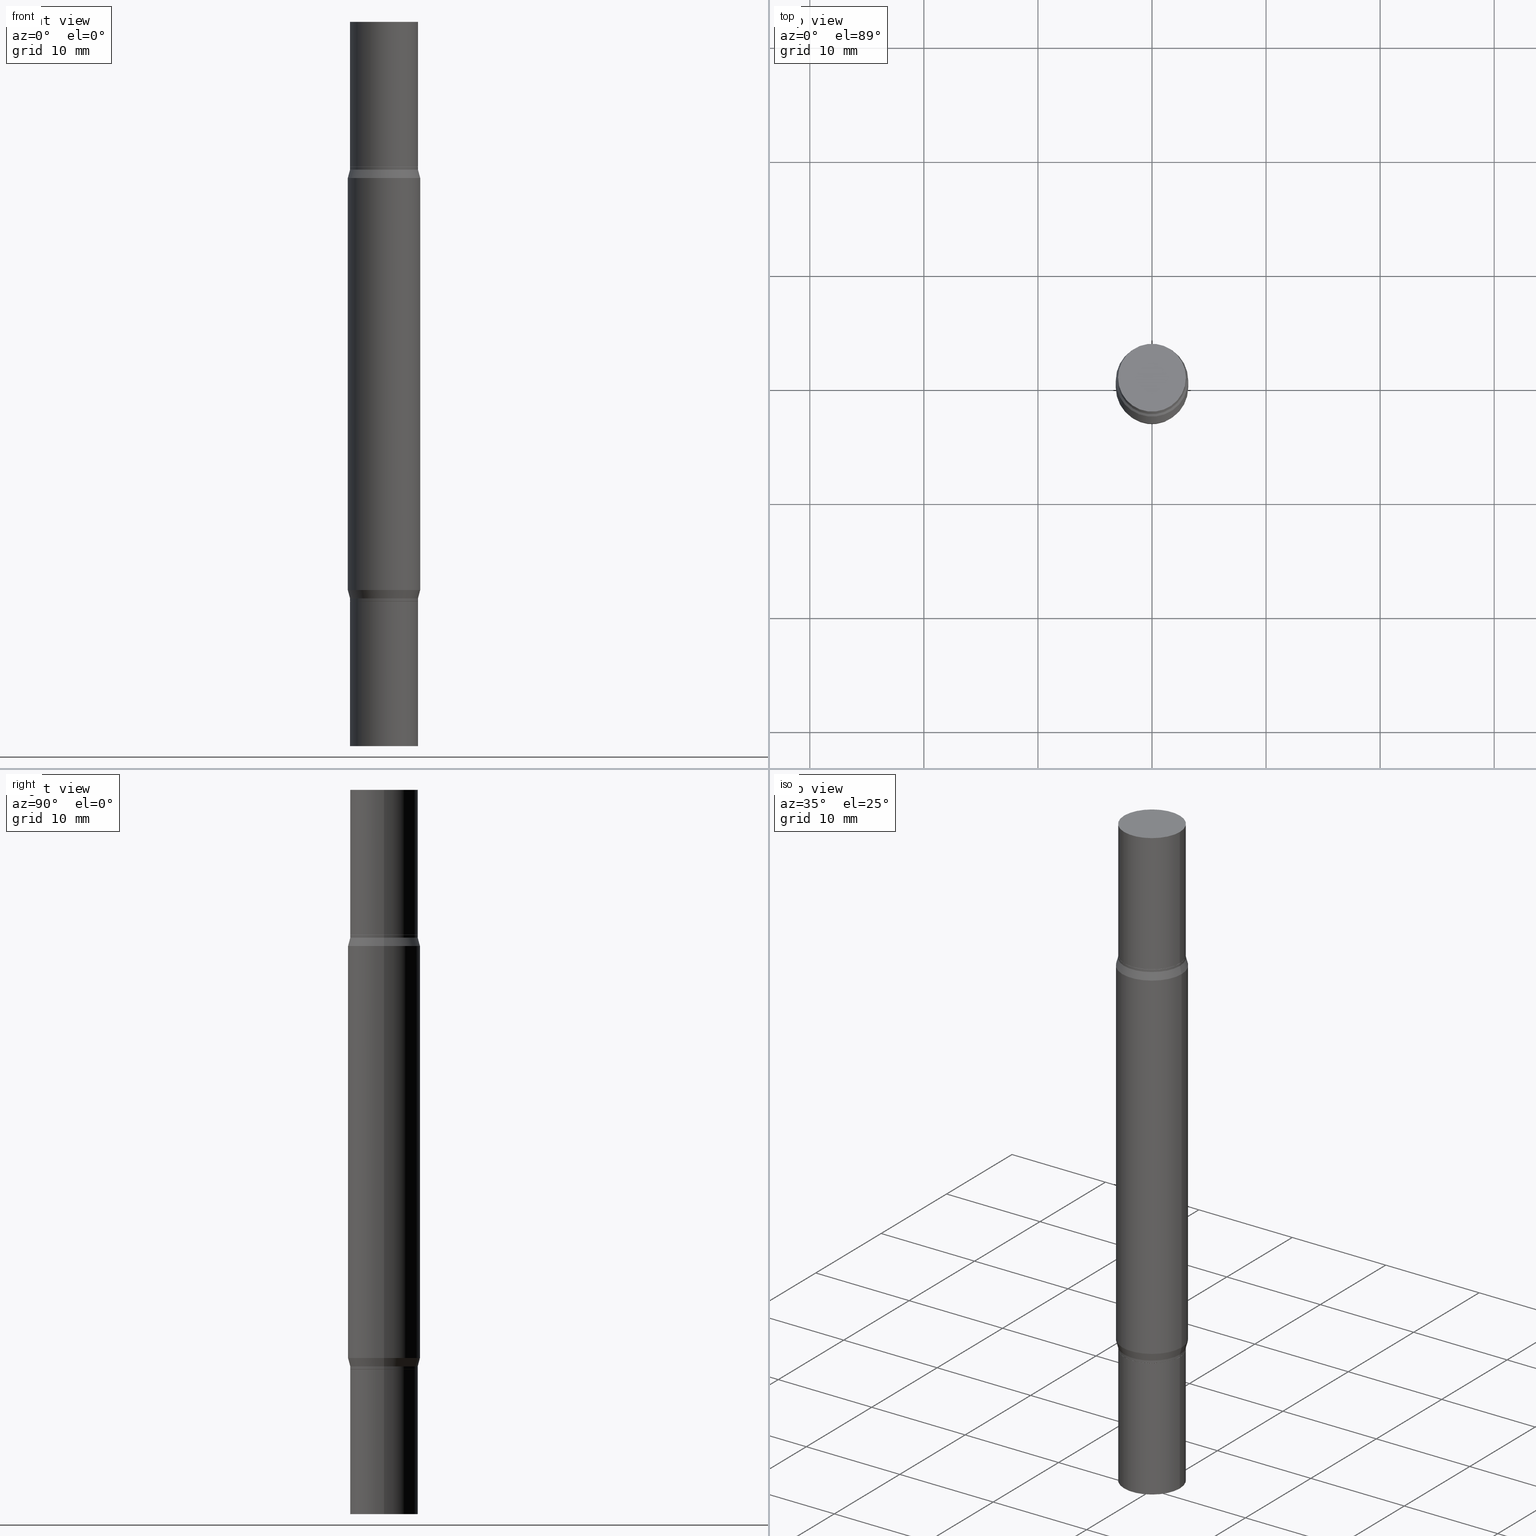
[diagram: canonical four-view strip — front | top / right | iso, engineering-drawing reading convention]
A machine part, canonical four-view strip (front | top / right | iso — engineering-drawing reading convention). The complete STEP part file that produces these views, byte-faithful:
ISO-10303-21;
HEADER;
FILE_DESCRIPTION (( 'STEP AP203' ),
    '1' );
FILE_NAME ('31183.STEP',
    '2024-03-04T15:58:43',
    ( '' ),
    ( '' ),
    'SwSTEP 2.0',
    'SolidWorks 2023',
    '' );
FILE_SCHEMA (( 'CONFIG_CONTROL_DESIGN' ));
ENDSEC;

DATA;
#1 = CIRCLE ( 'NONE', #325, 0.1250000000000000000 ) ;
#2 = PRODUCT_DEFINITION_FORMATION_WITH_SPECIFIED_SOURCE ( 'ANY', '', #537, .NOT_KNOWN. ) ;
#3 = ORIENTED_EDGE ( 'NONE', *, *, #477, .T. ) ;
#4 = EDGE_CURVE ( 'NONE', #231, #358, #57, .T. ) ;
#5 = DIRECTION ( 'NONE',  ( -2.445468806185136597E-29, 3.491481338843145583E-15, 1.000000000000000000 ) ) ;
#6 = EDGE_CURVE ( 'NONE', #55, #960, #245, .T. ) ;
#7 = DIRECTION ( 'NONE',  ( 0.000000000000000000, 1.000000000000000000, -4.370956789862821150E-15 ) ) ;
#8 = ORIENTED_EDGE ( 'NONE', *, *, #47, .F. ) ;
#9 = EDGE_CURVE ( 'NONE', #379, #474, #745, .T. ) ;
#10 = CARTESIAN_POINT ( 'NONE',  ( 4.890937612370273194E-29, -1.745497852333086357E-15, -0.4999999999999996114 ) ) ;
#11 = ORIENTED_EDGE ( 'NONE', *, *, #293, .T. ) ;
#12 = COORDINATED_UNIVERSAL_TIME_OFFSET ( 5, 0, .BEHIND. ) ;
#13 = MANIFOLD_SOLID_BREP ( 'Body-Move/Copy2[1]', #757 ) ;
#14 = CARTESIAN_POINT ( 'NONE',  ( 4.795295336410958635E-29, -1.882062336673981410E-15, -0.5391099962990381078 ) ) ;
#15 = DIRECTION ( 'NONE',  ( 1.000000000000000000, -6.982962677686265922E-15, 0.000000000000000000 ) ) ;
#16 = CIRCLE ( 'NONE', #800, 0.1171999999999999986 ) ;
#17 = CONICAL_SURFACE ( 'NONE', #292, 0.1166999999999999982, 0.7853981633974653764 ) ;
#18 = EDGE_CURVE ( 'NONE', #370, #553, #373, .T. ) ;
#19 = CIRCLE ( 'NONE', #277, 0.1166999999999999982 ) ;
#20 = EDGE_LOOP ( 'NONE', ( #487, #69, #648, #581 ) ) ;
#21 = DIRECTION ( 'NONE',  ( 2.445468806185136597E-29, 3.491805094961124077E-15, 1.000000000000000000 ) ) ;
#22 = ADVANCED_FACE ( 'NONE', ( #202 ), #66, .T. ) ;
#23 = ORIENTED_EDGE ( 'NONE', *, *, #203, .F. ) ;
#24 = LINE ( 'NONE', #244, #246 ) ;
#25 = PLANE ( 'NONE',  #291 ) ;
#26 = ORIENTED_EDGE ( 'NONE', *, *, #104, .T. ) ;
#27 = CARTESIAN_POINT ( 'NONE',  ( 0.1171999999999999154, -7.799620162841700511E-15, -1.999500000000000277 ) ) ;
#28 = DIRECTION ( 'NONE',  ( 1.000000000000000000, -6.982962677686266711E-15, 4.876176775795935793E-29 ) ) ;
#29 = AXIS2_PLACEMENT_3D ( 'NONE', #844, #162, #467 ) ;
#30 = EDGE_CURVE ( 'NONE', #443, #320, #272, .T. ) ;
#31 = AXIS2_PLACEMENT_3D ( 'NONE', #937, #181, #652 ) ;
#32 = ORIENTED_EDGE ( 'NONE', *, *, #30, .F. ) ;
#33 = LOCAL_TIME ( 10, 58, 43.00000000000000000, #232 ) ;
#34 = AXIS2_PLACEMENT_3D ( 'NONE', #354, #728, #59 ) ;
#35 = DIRECTION ( 'NONE',  ( -2.445468806185136597E-29, 3.491481338843145583E-15, 1.000000000000000000 ) ) ;
#36 = CARTESIAN_POINT ( 'NONE',  ( -0.1171999999999999154, -9.431933895417428408E-16, -0.5004999999999991678 ) ) ;
#37 = CC_DESIGN_PERSON_AND_ORGANIZATION_ASSIGNMENT ( #618, #843, ( #319 ) ) ;
#38 = ORIENTED_EDGE ( 'NONE', *, *, #481, .F. ) ;
#39 = CARTESIAN_POINT ( 'NONE',  ( -0.1171999999999999154, -6.148460850706034029E-15, -1.999500000000000277 ) ) ;
#40 = DIRECTION ( 'NONE',  ( 1.000000000000000000, -6.982962677686267499E-15, 0.000000000000000000 ) ) ;
#41 = ORIENTED_EDGE ( 'NONE', *, *, #969, .F. ) ;
#42 = VERTEX_POINT ( 'NONE', #980 ) ;
#43 = CARTESIAN_POINT ( 'NONE',  ( 4.795295336410958635E-29, -6.846410855445973637E-15, -1.960890003700961337 ) ) ;
#44 = FACE_OUTER_BOUND ( 'NONE', #542, .T. ) ;
#45 = CYLINDRICAL_SURFACE ( 'NONE', #386, 0.1171999999999999986 ) ;
#46 = EDGE_LOOP ( 'NONE', ( #839, #158, #601, #949 ) ) ;
#47 = EDGE_CURVE ( 'NONE', #358, #42, #571, .T. ) ;
#48 = AXIS2_PLACEMENT_3D ( 'NONE', #458, #760, #906 ) ;
#49 = SECURITY_CLASSIFICATION ( '', '', #607 ) ;
#50 = CONICAL_SURFACE ( 'NONE', #724, 0.1166999999999999982, 0.7853981633974653764 ) ;
#51 = DIRECTION ( 'NONE',  ( 0.2588190451025205729, 1.565188264969628081E-15, 0.9659258262890684232 ) ) ;
#52 = APPLICATION_PROTOCOL_DEFINITION ( 'international standard', 'config_control_design', 1994, #405 ) ;
#53 = CARTESIAN_POINT ( 'NONE',  ( 0.1171999999999999154, -2.565646980705395418E-15, -0.5004999999999991678 ) ) ;
#54 = EDGE_CURVE ( 'NONE', #756, #596, #636, .T. ) ;
#55 = VERTEX_POINT ( 'NONE', #733 ) ;
#56 = DIRECTION ( 'NONE',  ( 1.000000000000000000, -6.982962677686266711E-15, 0.000000000000000000 ) ) ;
#57 = LINE ( 'NONE', #894, #419 ) ;
#58 = DIRECTION ( 'NONE',  ( -2.445468806185136597E-29, -3.491805094961124077E-15, -1.000000000000000000 ) ) ;
#59 = DIRECTION ( 'NONE',  ( 1.000000000000000000, -6.982962677686267499E-15, 0.000000000000000000 ) ) ;
#60 = DIRECTION ( 'NONE',  ( 1.000000000000000000, -6.982962677686262766E-15, 0.000000000000000000 ) ) ;
#61 = ORIENTED_EDGE ( 'NONE', *, *, #877, .T. ) ;
#62 = ADVANCED_FACE ( 'NONE', ( #658 ), #901, .T. ) ;
#63 = CIRCLE ( 'NONE', #31, 0.1171999999999999154 ) ;
#64 = DIRECTION ( 'NONE',  ( -1.000000000000000000, 6.982962677686265922E-15, -2.260776888683160832E-33 ) ) ;
#65 = FACE_OUTER_BOUND ( 'NONE', #586, .T. ) ;
#66 = CYLINDRICAL_SURFACE ( 'NONE', #677, 0.1250000000000000000 ) ;
#67 = CIRCLE ( 'NONE', #805, 0.1171999999999999986 ) ;
#68 = EDGE_CURVE ( 'NONE', #379, #409, #704, .T. ) ;
#69 = ORIENTED_EDGE ( 'NONE', *, *, #850, .T. ) ;
#70 = APPROVAL_ROLE ( '' ) ;
#71 = CARTESIAN_POINT ( 'NONE',  ( 6.113672015462842613E-29, -8.728703347107864943E-15, -2.500000000000000000 ) ) ;
#72 = CARTESIAN_POINT ( 'NONE',  ( -0.1250000000000000000, -1.024500086952540162E-15, -0.5391099962990381078 ) ) ;
#73 = ORIENTED_EDGE ( 'NONE', *, *, #890, .T. ) ;
#74 = SHAPE_DEFINITION_REPRESENTATION ( #92, #259 ) ;
#75 = DIRECTION ( 'NONE',  ( -2.445468806185136877E-29, -3.491805094961123683E-15, -1.000000000000000000 ) ) ;
#76 = ORIENTED_EDGE ( 'NONE', *, *, #6, .T. ) ;
#77 = ADVANCED_FACE ( 'NONE', ( #737 ), #965, .F. ) ;
#78 = AXIS2_PLACEMENT_3D ( 'NONE', #614, #923, #237 ) ;
#79 = CARTESIAN_POINT ( 'NONE',  ( 0.000000000000000000, 0.000000000000000000, 0.000000000000000000 ) ) ;
#80 = AXIS2_PLACEMENT_3D ( 'NONE', #334, #174, #781 ) ;
#81 = AXIS2_PLACEMENT_3D ( 'NONE', #576, #650, #7 ) ;
#82 = ADVANCED_FACE ( 'NONE', ( #132 ), #432, .T. ) ;
#83 = VECTOR ( 'NONE', #441, 39.37007874015748143 ) ;
#84 = CARTESIAN_POINT ( 'NONE',  ( 4.890937612370273754E-29, -1.745497852333085568E-15, -0.4999999999999993339 ) ) ;
#85 = ORIENTED_EDGE ( 'NONE', *, *, #710, .T. ) ;
#86 = CYLINDRICAL_SURFACE ( 'NONE', #834, 0.1171999999999997766 ) ;
#87 = EDGE_LOOP ( 'NONE', ( #489, #85, #100, #922 ) ) ;
#88 = DIRECTION ( 'NONE',  ( 1.000000000000000000, -6.982962677686266711E-15, 0.000000000000000000 ) ) ;
#89 = ORIENTED_EDGE ( 'NONE', *, *, #269, .T. ) ;
#90 = ADVANCED_FACE ( 'NONE', ( #139 ), #284, .T. ) ;
#91 = LINE ( 'NONE', #155, #257 ) ;
#92 = PRODUCT_DEFINITION_SHAPE ( 'NONE', 'NONE',  #319 ) ;
#93 = AXIS2_PLACEMENT_3D ( 'NONE', #71, #368, #959 ) ;
#94 = CIRCLE ( 'NONE', #705, 0.1171999999999999154 ) ;
#95 = ADVANCED_FACE ( 'NONE', ( #214 ), #340, .T. ) ;
#96 = VECTOR ( 'NONE', #825, 39.37007874015748143 ) ;
#97 = ORIENTED_EDGE ( 'NONE', *, *, #364, .T. ) ;
#98 = CALENDAR_DATE ( 2024, 4, 3 ) ;
#99 = DIRECTION ( 'NONE',  ( -2.445468806185136597E-29, 3.491481338843145583E-15, 1.000000000000000000 ) ) ;
#100 = ORIENTED_EDGE ( 'NONE', *, *, #68, .F. ) ;
#101 = DIRECTION ( 'NONE',  ( 1.000000000000000000, -6.982962677686265133E-15, 0.000000000000000000 ) ) ;
#102 = CARTESIAN_POINT ( 'NONE',  ( 0.1166999999999999982, -2.560409596819072819E-15, -0.4999999999999993339 ) ) ;
#103 = EDGE_LOOP ( 'NONE', ( #606, #934 ) ) ;
#104 = EDGE_CURVE ( 'NONE', #846, #428, #902, .T. ) ;
#105 = DIRECTION ( 'NONE',  ( 1.000000000000000000, -6.982962677686262766E-15, 0.000000000000000000 ) ) ;
#106 = AXIS2_PLACEMENT_3D ( 'NONE', #754, #5, #598 ) ;
#107 = ADVANCED_FACE ( 'NONE', ( #381 ), #86, .T. ) ;
#108 = AXIS2_PLACEMENT_3D ( 'NONE', #429, #656, #64 ) ;
#109 = VERTEX_POINT ( 'NONE', #695 ) ;
#110 = VECTOR ( 'NONE', #496, 39.37007874015748143 ) ;
#111 = DIRECTION ( 'NONE',  ( 2.445468806185136597E-29, 3.491805094961124077E-15, 1.000000000000000000 ) ) ;
#112 = DIRECTION ( 'NONE',  ( -2.445468806185136597E-29, 3.491481338843145583E-15, 1.000000000000000000 ) ) ;
#113 = ORIENTED_EDGE ( 'NONE', *, *, #875, .T. ) ;
#114 = LINE ( 'NONE', #410, #260 ) ;
#115 = CARTESIAN_POINT ( 'NONE',  ( 4.890937612370273754E-29, -1.745497852333085568E-15, -0.4999999999999993339 ) ) ;
#116 = FACE_OUTER_BOUND ( 'NONE', #413, .T. ) ;
#117 = EDGE_LOOP ( 'NONE', ( #32, #974, #404, #153 ) ) ;
#118 = EDGE_LOOP ( 'NONE', ( #265, #302, #798, #38 ) ) ;
#119 = DIRECTION ( 'NONE',  ( -2.445468806185136877E-29, -3.491805094961123683E-15, -1.000000000000000000 ) ) ;
#120 = ORIENTED_EDGE ( 'NONE', *, *, #305, .T. ) ;
#121 = CC_DESIGN_PERSON_AND_ORGANIZATION_ASSIGNMENT ( #847, #303, ( #2 ) ) ;
#122 = LINE ( 'NONE', #884, #932 ) ;
#123 = AXIS2_PLACEMENT_3D ( 'NONE', #631, #939, #256 ) ;
#124 = VERTEX_POINT ( 'NONE', #833 ) ;
#125 = DIRECTION ( 'NONE',  ( -2.445468806185136877E-29, 3.491481338843145188E-15, 1.000000000000000000 ) ) ;
#126 = DIRECTION ( 'NONE',  ( -2.445468806185136877E-29, -3.491805094961123683E-15, -1.000000000000000000 ) ) ;
#127 = DIRECTION ( 'NONE',  ( 1.000000000000000000, -6.982962677686266711E-15, 0.000000000000000000 ) ) ;
#128 = ORIENTED_EDGE ( 'NONE', *, *, #220, .F. ) ;
#129 = CARTESIAN_POINT ( 'NONE',  ( 4.890937612370273194E-29, -6.982962677686291165E-15, -2.000000000000000000 ) ) ;
#130 = DIRECTION ( 'NONE',  ( -2.445468806185136597E-29, 3.491481338843145583E-15, 1.000000000000000000 ) ) ;
#131 = ADVANCED_FACE ( 'NONE', ( #910 ), #25, .F. ) ;
#132 = FACE_OUTER_BOUND ( 'NONE', #495, .T. ) ;
#133 = EDGE_CURVE ( 'NONE', #347, #184, #16, .T. ) ;
#134 = DIRECTION ( 'NONE',  ( 1.000000000000000000, -6.982962677686266711E-15, 0.000000000000000000 ) ) ;
#135 = ORIENTED_EDGE ( 'NONE', *, *, #350, .T. ) ;
#136 = AXIS2_PLACEMENT_3D ( 'NONE', #406, #548, #714 ) ;
#137 = DIRECTION ( 'NONE',  ( -2.445468806185136597E-29, 3.491481338843145583E-15, 1.000000000000000000 ) ) ;
#138 = APPROVAL_PERSON_ORGANIZATION ( #363, #732, #930 ) ;
#139 = FACE_OUTER_BOUND ( 'NONE', #383, .T. ) ;
#140 = CARTESIAN_POINT ( 'NONE',  ( -0.1250000000000000000, -7.871545792533893657E-15, -2.499999999999999556 ) ) ;
#141 = ORIENTED_EDGE ( 'NONE', *, *, #858, .T. ) ;
#142 = PLANE ( 'NONE',  #108 ) ;
#143 = DIRECTION ( 'NONE',  ( -2.445468806185136597E-29, -3.491805094961124077E-15, -1.000000000000000000 ) ) ;
#144 = ADVANCED_FACE ( 'NONE', ( #913 ), #961, .T. ) ;
#145 = CC_DESIGN_PERSON_AND_ORGANIZATION_ASSIGNMENT ( #764, #899, ( #2 ) ) ;
#146 = EDGE_LOOP ( 'NONE', ( #225, #73, #238, #979 ) ) ;
#147 = DIRECTION ( 'NONE',  ( 2.445468806185136597E-29, 3.491805094961124077E-15, 1.000000000000000000 ) ) ;
#148 = DIRECTION ( 'NONE',  ( -2.445468806185136597E-29, 3.491481338843145583E-15, 1.000000000000000000 ) ) ;
#149 = EDGE_LOOP ( 'NONE', ( #336, #718 ) ) ;
#150 = DIRECTION ( 'NONE',  ( 2.445468806185136597E-29, 3.491805094961124077E-15, 1.000000000000000000 ) ) ;
#151 = CONICAL_SURFACE ( 'NONE', #500, 0.1166999999999999982, 0.7853981633974653764 ) ;
#152 = CARTESIAN_POINT ( 'NONE',  ( 6.156036237064764642E-29, 6.107267170317730547E-17, 5.463695987328526437E-16 ) ) ;
#153 = ORIENTED_EDGE ( 'NONE', *, *, #375, .T. ) ;
#154 = ADVANCED_FACE ( 'NONE', ( #688 ), #222, .F. ) ;
#155 = CARTESIAN_POINT ( 'NONE',  ( 0.1250000000000000000, -9.601978376966118441E-15, -2.499999999999999556 ) ) ;
#156 = EDGE_CURVE ( 'NONE', #177, #188, #691, .T. ) ;
#157 = EDGE_CURVE ( 'NONE', #752, #124, #369, .T. ) ;
#158 = ORIENTED_EDGE ( 'NONE', *, *, #375, .F. ) ;
#159 = CARTESIAN_POINT ( 'NONE',  ( 6.113672015462842613E-29, 4.046951474745467748E-19, 5.463695987328526437E-16 ) ) ;
#160 = DIRECTION ( 'NONE',  ( 0.7071067811865595631, -2.468850131082382884E-15, 0.7071067811865354713 ) ) ;
#161 = VERTEX_POINT ( 'NONE', #771 ) ;
#162 = DIRECTION ( 'NONE',  ( 2.445468806185136597E-29, 3.491805094961124077E-15, 1.000000000000000000 ) ) ;
#163 = AXIS2_PLACEMENT_3D ( 'NONE', #532, #374, #449 ) ;
#164 = VECTOR ( 'NONE', #600, 39.37007874015748143 ) ;
#165 = ORIENTED_EDGE ( 'NONE', *, *, #477, .F. ) ;
#166 = PERSON_AND_ORGANIZATION ( #711, #480 ) ;
#167 = CARTESIAN_POINT ( 'NONE',  ( 0.1250000000000000000, -7.719281190156756975E-15, -1.960890003700961337 ) ) ;
#168 = CYLINDRICAL_SURFACE ( 'NONE', #770, 0.1171999999999999986 ) ;
#169 = ADVANCED_FACE ( 'NONE', ( #460 ), #879, .T. ) ;
#170 = ORIENTED_EDGE ( 'NONE', *, *, #203, .T. ) ;
#171 = CARTESIAN_POINT ( 'NONE',  ( 4.795295336410958635E-29, -1.882062336673981410E-15, -0.5391099962990381078 ) ) ;
#172 = EDGE_LOOP ( 'NONE', ( #186, #448, #61, #842 ) ) ;
#173 = CARTESIAN_POINT ( 'NONE',  ( -0.1171999999999999986, -7.925057676916510614E-15, -2.499999999999999556 ) ) ;
#174 = DIRECTION ( 'NONE',  ( -2.445468806185136597E-29, 3.491481338843145583E-15, 1.000000000000000000 ) ) ;
#175 = AXIS2_PLACEMENT_3D ( 'NONE', #206, #444, #748 ) ;
#176 = CARTESIAN_POINT ( 'NONE',  ( 0.1171999999999997766, -9.547511268080164375E-15, -2.499999999999999556 ) ) ;
#177 = VERTEX_POINT ( 'NONE', #765 ) ;
#178 = APPROVAL_PERSON_ORGANIZATION ( #539, #690, #317 ) ;
#179 = DIRECTION ( 'NONE',  ( 1.000000000000000000, -6.982962677686265922E-15, 2.260776888683160832E-33 ) ) ;
#180 = EDGE_CURVE ( 'NONE', #752, #836, #91, .T. ) ;
#181 = DIRECTION ( 'NONE',  ( 2.445468806185136597E-29, 3.491805094961124077E-15, 1.000000000000000000 ) ) ;
#182 = DIRECTION ( 'NONE',  ( -2.445468806185136597E-29, 3.491481338843145583E-15, 1.000000000000000000 ) ) ;
#183 = LINE ( 'NONE', #712, #417 ) ;
#184 = VERTEX_POINT ( 'NONE', #831 ) ;
#185 = ADVANCED_FACE ( 'NONE', ( #307 ), #758, .F. ) ;
#186 = ORIENTED_EDGE ( 'NONE', *, *, #242, .F. ) ;
#187 = DIRECTION ( 'NONE',  ( 2.445468806185136597E-29, 3.491805094961124077E-15, 1.000000000000000000 ) ) ;
#188 = VERTEX_POINT ( 'NONE', #609 ) ;
#189 = LINE ( 'NONE', #494, #518 ) ;
#190 = ORIENTED_EDGE ( 'NONE', *, *, #719, .F. ) ;
#191 = ORIENTED_EDGE ( 'NONE', *, *, #593, .T. ) ;
#192 = CIRCLE ( 'NONE', #588, 0.1171999999999999986 ) ;
#193 = VECTOR ( 'NONE', #119, 39.37007874015748143 ) ;
#194 = VECTOR ( 'NONE', #392, 39.37007874015748143 ) ;
#195 = DIRECTION ( 'NONE',  ( 1.000000000000000000, -6.982962677686261977E-15, 0.000000000000000000 ) ) ;
#196 = CARTESIAN_POINT ( 'NONE',  ( -0.1166999999999999982, -9.440355627674452081E-16, -0.4999999999999993339 ) ) ;
#197 = ORIENTED_EDGE ( 'NONE', *, *, #811, .F. ) ;
#198 = DIRECTION ( 'NONE',  ( 0.2588190451025205729, -5.180148453816002468E-15, -0.9659258262890684232 ) ) ;
#199 = ORIENTED_EDGE ( 'NONE', *, *, #394, .F. ) ;
#200 = CARTESIAN_POINT ( 'NONE',  ( 0.000000000000000000, -8.729108042255335103E-15, -2.499999999999999556 ) ) ;
#201 = MECHANICAL_CONTEXT ( 'NONE', #405, 'mechanical' ) ;
#202 = FACE_OUTER_BOUND ( 'NONE', #832, .T. ) ;
#203 = EDGE_CURVE ( 'NONE', #428, #846, #226, .T. ) ;
#204 = DIRECTION ( 'NONE',  ( -2.445468806185136597E-29, 3.491481338843145583E-15, 1.000000000000000000 ) ) ;
#205 = ORIENTED_EDGE ( 'NONE', *, *, #641, .F. ) ;
#206 = CARTESIAN_POINT ( 'NONE',  ( 4.795295336410958635E-29, -6.846410855445973637E-15, -1.960890003700961337 ) ) ;
#207 = DIRECTION ( 'NONE',  ( -2.445468806185136877E-29, -3.491805094961123683E-15, -1.000000000000000000 ) ) ;
#208 = CARTESIAN_POINT ( 'NONE',  ( 4.890937612370273754E-29, -1.745497852333085568E-15, -0.4999999999999993339 ) ) ;
#209 = LINE ( 'NONE', #824, #83 ) ;
#210 = DIRECTION ( 'NONE',  ( 2.438088387897959208E-29, 3.491805094961123683E-15, 1.000000000000000000 ) ) ;
#211 = AXIS2_PLACEMENT_3D ( 'NONE', #427, #504, #295 ) ;
#212 = CONICAL_SURFACE ( 'NONE', #769, 0.1171999999999996239, 0.2617993877991492413 ) ;
#213 = DIRECTION ( 'NONE',  ( 2.445468806185136597E-29, 3.491805094961124077E-15, 1.000000000000000000 ) ) ;
#214 = FACE_OUTER_BOUND ( 'NONE', #568, .T. ) ;
#215 = CIRCLE ( 'NONE', #706, 0.1250000000000000000 ) ;
#216 = FACE_OUTER_BOUND ( 'NONE', #287, .T. ) ;
#217 = ORIENTED_EDGE ( 'NONE', *, *, #156, .F. ) ;
#218 = EDGE_CURVE ( 'NONE', #703, #390, #605, .T. ) ;
#219 = DIRECTION ( 'NONE',  ( 2.438088387897960049E-29, -3.491481338843145188E-15, -1.000000000000000000 ) ) ;
#220 = EDGE_CURVE ( 'NONE', #320, #617, #466, .T. ) ;
#221 = ORIENTED_EDGE ( 'NONE', *, *, #436, .F. ) ;
#222 = PLANE ( 'NONE',  #48 ) ;
#223 = PLANE ( 'NONE',  #572 ) ;
#224 = CARTESIAN_POINT ( 'NONE',  ( 4.890937612370273754E-29, -6.982962677686291954E-15, -2.000000000000000444 ) ) ;
#225 = ORIENTED_EDGE ( 'NONE', *, *, #850, .F. ) ;
#226 = CIRCLE ( 'NONE', #554, 0.1171999999999999986 ) ;
#227 = EDGE_CURVE ( 'NONE', #124, #752, #450, .T. ) ;
#228 = DIRECTION ( 'NONE',  ( 1.000000000000000000, -6.982962677686265922E-15, 0.000000000000000000 ) ) ;
#229 = AXIS2_PLACEMENT_3D ( 'NONE', #249, #187, #252 ) ;
#230 = LINE ( 'NONE', #533, #862 ) ;
#231 = VERTEX_POINT ( 'NONE', #255 ) ;
#232 = COORDINATED_UNIVERSAL_TIME_OFFSET ( 5, 0, .BEHIND. ) ;
#233 = EDGE_CURVE ( 'NONE', #960, #55, #514, .T. ) ;
#234 = CARTESIAN_POINT ( 'NONE',  ( 4.890937612370273754E-29, -1.745497852333085568E-15, -0.4999999999999993339 ) ) ;
#235 = CARTESIAN_POINT ( 'NONE',  ( 0.1166999999999999982, -7.797874422172279797E-15, -2.000000000000000444 ) ) ;
#236 = APPROVAL_STATUS ( 'not_yet_approved' ) ;
#237 = DIRECTION ( 'NONE',  ( 1.000000000000000000, -6.982962677686267499E-15, 0.000000000000000000 ) ) ;
#238 = ORIENTED_EDGE ( 'NONE', *, *, #9, .T. ) ;
#239 = DATE_TIME_ROLE ( 'creation_date' ) ;
#240 = DIRECTION ( 'NONE',  ( 1.000000000000000000, -6.982962677686265133E-15, 0.000000000000000000 ) ) ;
#241 = AXIS2_PLACEMENT_3D ( 'NONE', #10, #299, #385 ) ;
#242 = EDGE_CURVE ( 'NONE', #177, #184, #484, .T. ) ;
#243 = CIRCLE ( 'NONE', #372, 0.1171999999999996239 ) ;
#244 = CARTESIAN_POINT ( 'NONE',  ( -0.1171999999999997766, 8.327560863108358303E-16, -5.764991925778737911E-30 ) ) ;
#245 = CIRCLE ( 'NONE', #804, 0.1166999999999999982 ) ;
#246 = VECTOR ( 'NONE', #853, 39.37007874015748143 ) ;
#247 = ORIENTED_EDGE ( 'NONE', *, *, #54, .T. ) ;
#248 = EDGE_CURVE ( 'NONE', #231, #421, #619, .T. ) ;
#249 = CARTESIAN_POINT ( 'NONE',  ( 4.866482924308422209E-29, -1.780415903282698911E-15, -0.5099999999999994538 ) ) ;
#250 = ORIENTED_EDGE ( 'NONE', *, *, #951, .T. ) ;
#251 = CARTESIAN_POINT ( 'NONE',  ( 4.889714877967180953E-29, -1.747243754880567132E-15, -0.5004999999999991678 ) ) ;
#252 = DIRECTION ( 'NONE',  ( 1.000000000000000000, -6.982962677686267499E-15, 0.000000000000000000 ) ) ;
#253 = DIRECTION ( 'NONE',  ( 1.000000000000000000, -6.982962677686266711E-15, 4.876176775795935793E-29 ) ) ;
#254 = ORIENTED_EDGE ( 'NONE', *, *, #180, .T. ) ;
#255 = CARTESIAN_POINT ( 'NONE',  ( -0.1166999999999999982, -9.440355627674452081E-16, -0.4999999999999993339 ) ) ;
#256 = DIRECTION ( 'NONE',  ( 1.000000000000000000, -6.982962677686265922E-15, 0.000000000000000000 ) ) ;
#257 = VECTOR ( 'NONE', #393, 39.37007874015748143 ) ;
#258 = ORIENTED_EDGE ( 'NONE', *, *, #509, .T. ) ;
#259 = ADVANCED_BREP_SHAPE_REPRESENTATION ( '31183', ( #13, #322, #306, #966, #311, #310 ), #945 ) ;
#260 = VECTOR ( 'NONE', #207, 39.37007874015748143 ) ;
#261 = ADVANCED_FACE ( 'NONE', ( #337 ), #699, .T. ) ;
#262 = LINE ( 'NONE', #792, #694 ) ;
#263 = CARTESIAN_POINT ( 'NONE',  ( -0.1171999999999999986, -7.925057676916510614E-15, -2.499999999999999556 ) ) ;
#264 = CARTESIAN_POINT ( 'NONE',  ( 0.000000000000000000, 0.000000000000000000, 0.000000000000000000 ) ) ;
#265 = ORIENTED_EDGE ( 'NONE', *, *, #604, .T. ) ;
#266 = CARTESIAN_POINT ( 'NONE',  ( 0.1171999999999996239, -2.598819129107527000E-15, -0.5099999999999994538 ) ) ;
#267 = CARTESIAN_POINT ( 'NONE',  ( 0.000000000000000000, -8.729108042255335103E-15, -2.499999999999999556 ) ) ;
#268 = EDGE_LOOP ( 'NONE', ( #452, #942, #191, #708 ) ) ;
#269 = EDGE_CURVE ( 'NONE', #443, #671, #943, .T. ) ;
#270 = CARTESIAN_POINT ( 'NONE',  ( -0.1171999999999999986, 8.327560863108374081E-16, -5.764991925778749121E-30 ) ) ;
#271 = LINE ( 'NONE', #881, #110 ) ;
#272 = LINE ( 'NONE', #281, #659 ) ;
#273 = CARTESIAN_POINT ( 'NONE',  ( 4.890937612370273754E-29, -6.982962677686291954E-15, -2.000000000000000444 ) ) ;
#274 = AXIS2_PLACEMENT_3D ( 'NONE', #365, #810, #127 ) ;
#275 = AXIS2_PLACEMENT_3D ( 'NONE', #707, #485, #947 ) ;
#276 = VERTEX_POINT ( 'NONE', #300 ) ;
#277 = AXIS2_PLACEMENT_3D ( 'NONE', #872, #148, #655 ) ;
#278 = ADVANCED_FACE ( 'NONE', ( #599 ), #223, .F. ) ;
#279 = DIRECTION ( 'NONE',  ( -2.445468806185136597E-29, -3.491805094961124077E-15, -1.000000000000000000 ) ) ;
#280 =( NAMED_UNIT ( * ) SI_UNIT ( $, .STERADIAN. ) SOLID_ANGLE_UNIT ( ) );
#281 = CARTESIAN_POINT ( 'NONE',  ( -0.1171999999999997766, -7.925057676916513769E-15, -2.499999999999999556 ) ) ;
#282 = ORIENTED_EDGE ( 'NONE', *, *, #509, .F. ) ;
#283 = CARTESIAN_POINT ( 'NONE',  ( 3.056836007731420185E-29, -4.364351673553931682E-15, -1.249999999999999778 ) ) ;
#284 = CYLINDRICAL_SURFACE ( 'NONE', #721, 0.1171999999999999986 ) ;
#285 = DIRECTION ( 'NONE',  ( 1.000000000000000000, -6.982962677686266711E-15, 0.000000000000000000 ) ) ;
#286 = EDGE_CURVE ( 'NONE', #596, #418, #230, .T. ) ;
#287 = EDGE_LOOP ( 'NONE', ( #522, #742 ) ) ;
#288 = DIRECTION ( 'NONE',  ( -2.445468806185136597E-29, 3.491481338843145583E-15, 1.000000000000000000 ) ) ;
#289 = CALENDAR_DATE ( 2024, 4, 3 ) ;
#290 = CARTESIAN_POINT ( 'NONE',  ( 0.000000000000000000, -8.729108042255335103E-15, -2.499999999999999556 ) ) ;
#291 = AXIS2_PLACEMENT_3D ( 'NONE', #318, #219, #680 ) ;
#292 = AXIS2_PLACEMENT_3D ( 'NONE', #957, #58, #819 ) ;
#293 = EDGE_CURVE ( 'NONE', #517, #751, #433, .T. ) ;
#294 = CLOSED_SHELL ( 'NONE', ( #348, #352, #750, #574, #154, #794, #684, #785, #895, #22 ) ) ;
#295 = DIRECTION ( 'NONE',  ( 1.000000000000000000, -6.982962677686266711E-15, 0.000000000000000000 ) ) ;
#296 = CIRCLE ( 'NONE', #917, 0.1171999999999999154 ) ;
#297 = EDGE_LOOP ( 'NONE', ( #113, #727 ) ) ;
#298 = ORIENTED_EDGE ( 'NONE', *, *, #597, .T. ) ;
#299 = DIRECTION ( 'NONE',  ( -2.438088387897959208E-29, -3.491805094961123683E-15, -1.000000000000000000 ) ) ;
#300 = CARTESIAN_POINT ( 'NONE',  ( -0.1250000000000000000, -2.265644755392513326E-15, -1.249999999999999778 ) ) ;
#301 = EDGE_CURVE ( 'NONE', #390, #703, #192, .T. ) ;
#302 = ORIENTED_EDGE ( 'NONE', *, *, #400, .T. ) ;
#303 = PERSON_AND_ORGANIZATION_ROLE ( 'creator' ) ;
#304 = AXIS2_PLACEMENT_3D ( 'NONE', #332, #635, #869 ) ;
#305 = EDGE_CURVE ( 'NONE', #161, #379, #921, .T. ) ;
#306 = MANIFOLD_SOLID_BREP ( 'Mirror1[3]', #591 ) ;
#307 = FACE_OUTER_BOUND ( 'NONE', #297, .T. ) ;
#308 = VECTOR ( 'NONE', #125, 39.37007874015748143 ) ;
#309 = APPROVAL_PERSON_ORGANIZATION ( #768, #753, #70 ) ;
#310 = AXIS2_PLACEMENT_3D ( 'NONE', #893, #349, #958 ) ;
#311 = MANIFOLD_SOLID_BREP ( 'Combine1', #851 ) ;
#312 = EDGE_LOOP ( 'NONE', ( #594, #298, #796, #685 ) ) ;
#313 = DATE_AND_TIME ( #289, #964 ) ;
#314 = DIRECTION ( 'NONE',  ( -2.438088387897959208E-29, -3.491805094961123683E-15, -1.000000000000000000 ) ) ;
#315 = CARTESIAN_POINT ( 'NONE',  ( 6.113672015462842613E-29, 4.046951474745467748E-19, 5.463695987328526437E-16 ) ) ;
#316 = ORIENTED_EDGE ( 'NONE', *, *, #687, .F. ) ;
#317 = APPROVAL_ROLE ( '' ) ;
#318 = CARTESIAN_POINT ( 'NONE',  ( 8.184032258248792661E-16, 0.1171999999999930181, -2.000000000000000444 ) ) ;
#319 = PRODUCT_DEFINITION ( 'UNKNOWN', '', #2, #940 ) ;
#320 = VERTEX_POINT ( 'NONE', #462 ) ;
#321 = APPROVAL_STATUS ( 'not_yet_approved' ) ;
#322 = MANIFOLD_SOLID_BREP ( 'Mirror1[1]', #294 ) ;
#323 = AXIS2_PLACEMENT_3D ( 'NONE', #829, #143, #456 ) ;
#324 = DIRECTION ( 'NONE',  ( -2.445468806185136597E-29, -3.491805094961124077E-15, -1.000000000000000000 ) ) ;
#325 = AXIS2_PLACEMENT_3D ( 'NONE', #171, #111, #709 ) ;
#326 = AXIS2_PLACEMENT_3D ( 'NONE', #950, #946, #971 ) ;
#327 = VECTOR ( 'NONE', #513, 39.37007874015748143 ) ;
#328 = ORIENTED_EDGE ( 'NONE', *, *, #597, .F. ) ;
#329 = CARTESIAN_POINT ( 'NONE',  ( -0.1171999999999996239, -6.131876314346530928E-15, -1.989999999999999991 ) ) ;
#330 = ADVANCED_FACE ( 'NONE', ( #389 ), #859, .T. ) ;
#331 = VERTEX_POINT ( 'NONE', #53 ) ;
#332 = CARTESIAN_POINT ( 'NONE',  ( 4.889714877967180953E-29, -1.747243754880567132E-15, -0.5004999999999991678 ) ) ;
#333 = EDGE_CURVE ( 'NONE', #891, #752, #933, .T. ) ;
#334 = CARTESIAN_POINT ( 'NONE',  ( 4.890937612370273754E-29, -6.982962677686291954E-15, -2.000000000000000444 ) ) ;
#335 = DIRECTION ( 'NONE',  ( 1.000000000000000000, -6.982962677686269866E-15, 0.000000000000000000 ) ) ;
#336 = ORIENTED_EDGE ( 'NONE', *, *, #18, .F. ) ;
#337 = FACE_OUTER_BOUND ( 'NONE', #20, .T. ) ;
#338 = DIRECTION ( 'NONE',  ( 1.000000000000000000, -6.982962677686265133E-15, 0.000000000000000000 ) ) ;
#339 = CARTESIAN_POINT ( 'NONE',  ( -0.1171999999999996239, -6.115291777987025461E-15, -1.989999999999999991 ) ) ;
#340 = CONICAL_SURFACE ( 'NONE', #323, 0.1166999999999999982, 0.7853981633974653764 ) ;
#341 = AXIS2_PLACEMENT_3D ( 'NONE', #788, #182, #716 ) ;
#342 = CYLINDRICAL_SURFACE ( 'NONE', #545, 0.1171999999999999986 ) ;
#343 = VERTEX_POINT ( 'NONE', #329 ) ;
#344 = VECTOR ( 'NONE', #366, 39.37007874015748143 ) ;
#345 = DIRECTION ( 'NONE',  ( 2.445468806185136597E-29, 3.491805094961124077E-15, 1.000000000000000000 ) ) ;
#346 = CARTESIAN_POINT ( 'NONE',  ( 4.866482924308422209E-29, -1.780415903282698911E-15, -0.5099999999999994538 ) ) ;
#347 = VERTEX_POINT ( 'NONE', #874 ) ;
#348 = ADVANCED_FACE ( 'NONE', ( #44 ), #639, .T. ) ;
#349 = DIRECTION ( 'NONE',  ( 0.000000000000000000, 0.000000000000000000, 1.000000000000000000 ) ) ;
#350 = EDGE_CURVE ( 'NONE', #891, #42, #499, .T. ) ;
#351 = DIRECTION ( 'NONE',  ( -2.445468806185136597E-29, -3.491805094961124077E-15, -1.000000000000000000 ) ) ;
#352 = ADVANCED_FACE ( 'NONE', ( #562 ), #212, .T. ) ;
#353 = FACE_OUTER_BOUND ( 'NONE', #897, .T. ) ;
#354 = CARTESIAN_POINT ( 'NONE',  ( 4.866482924308422209E-29, -1.780415903282698911E-15, -0.5099999999999994538 ) ) ;
#355 = CARTESIAN_POINT ( 'NONE',  ( -0.1171999999999997766, -7.925057676916513769E-15, -2.499999999999999556 ) ) ;
#356 = AXIS2_PLACEMENT_3D ( 'NONE', #925, #490, #240 ) ;
#357 = CIRCLE ( 'NONE', #80, 0.1166999999999999982 ) ;
#358 = VERTEX_POINT ( 'NONE', #935 ) ;
#359 = CARTESIAN_POINT ( 'NONE',  ( 6.113672015462842613E-29, -8.728703347107864943E-15, -2.500000000000000000 ) ) ;
#360 = DIRECTION ( 'NONE',  ( -2.445468806185136877E-29, -3.491805094961123683E-15, -1.000000000000000000 ) ) ;
#361 = ORIENTED_EDGE ( 'NONE', *, *, #233, .F. ) ;
#362 = CYLINDRICAL_SURFACE ( 'NONE', #931, 0.1250000000000000000 ) ;
#363 = PERSON_AND_ORGANIZATION ( #711, #480 ) ;
#364 = EDGE_CURVE ( 'NONE', #358, #331, #544, .T. ) ;
#365 = CARTESIAN_POINT ( 'NONE',  ( 4.889714877967180953E-29, -6.981216937016870451E-15, -1.999500000000000277 ) ) ;
#366 = DIRECTION ( 'NONE',  ( -2.445468806185136877E-29, -3.491805094961123683E-15, -1.000000000000000000 ) ) ;
#367 = EDGE_LOOP ( 'NONE', ( #328, #885, #908, #813 ) ) ;
#368 = DIRECTION ( 'NONE',  ( -2.445468806185136597E-29, 3.491481338843145583E-15, 1.000000000000000000 ) ) ;
#369 = CIRCLE ( 'NONE', #927, 0.1250000000000000000 ) ;
#370 = VERTEX_POINT ( 'NONE', #475 ) ;
#371 = AXIS2_PLACEMENT_3D ( 'NONE', #683, #838, #88 ) ;
#372 = AXIS2_PLACEMENT_3D ( 'NONE', #632, #789, #40 ) ;
#373 = CIRCLE ( 'NONE', #93, 0.1171999999999999986 ) ;
#374 = DIRECTION ( 'NONE',  ( -2.445468806185136597E-29, 3.491481338843145583E-15, 1.000000000000000000 ) ) ;
#375 = EDGE_CURVE ( 'NONE', #617, #320, #589, .T. ) ;
#376 = DIRECTION ( 'NONE',  ( -2.445468806185136597E-29, -3.491805094961124077E-15, -1.000000000000000000 ) ) ;
#377 = EDGE_LOOP ( 'NONE', ( #76, #818 ) ) ;
#378 = DIRECTION ( 'NONE',  ( 1.000000000000000000, -6.982962677686266711E-15, 4.876176775795935232E-29 ) ) ;
#379 = VERTEX_POINT ( 'NONE', #27 ) ;
#380 = DATE_AND_TIME ( #924, #420 ) ;
#381 = FACE_OUTER_BOUND ( 'NONE', #146, .T. ) ;
#382 = DIRECTION ( 'NONE',  ( -2.445468806185136597E-29, 3.491481338843145583E-15, 1.000000000000000000 ) ) ;
#383 = EDGE_LOOP ( 'NONE', ( #550, #861, #546, #782 ) ) ;
#384 = AXIS2_PLACEMENT_3D ( 'NONE', #470, #382, #689 ) ;
#385 = DIRECTION ( 'NONE',  ( 1.000000000000000000, -6.982962677686265922E-15, 2.260776888683160832E-33 ) ) ;
#386 = AXIS2_PLACEMENT_3D ( 'NONE', #264, #112, #253 ) ;
#387 = CC_DESIGN_APPROVAL ( #732, ( #49 ) ) ;
#388 = AXIS2_PLACEMENT_3D ( 'NONE', #503, #646, #801 ) ;
#389 = FACE_OUTER_BOUND ( 'NONE', #399, .T. ) ;
#390 = VERTEX_POINT ( 'NONE', #866 ) ;
#391 = DATE_AND_TIME ( #919, #33 ) ;
#392 = DIRECTION ( 'NONE',  ( 0.7071067811865595631, -7.406779323393320831E-15, -0.7071067811865354713 ) ) ;
#393 = DIRECTION ( 'NONE',  ( -2.445468806185136877E-29, -3.491805094961123683E-15, -1.000000000000000000 ) ) ;
#394 = EDGE_CURVE ( 'NONE', #846, #390, #407, .T. ) ;
#395 = ORIENTED_EDGE ( 'NONE', *, *, #634, .F. ) ;
#396 = DIRECTION ( 'NONE',  ( -2.445468806185136877E-29, -3.491805094961123683E-15, -1.000000000000000000 ) ) ;
#397 = FACE_OUTER_BOUND ( 'NONE', #590, .T. ) ;
#398 = DIRECTION ( 'NONE',  ( -2.445468806185136597E-29, 3.491481338843145583E-15, 1.000000000000000000 ) ) ;
#399 = EDGE_LOOP ( 'NONE', ( #8, #165, #696, #135 ) ) ;
#400 = EDGE_CURVE ( 'NONE', #343, #674, #793, .T. ) ;
#401 = DIRECTION ( 'NONE',  ( 2.445468806185136597E-29, 3.491805094961124077E-15, 1.000000000000000000 ) ) ;
#402 = AXIS2_PLACEMENT_3D ( 'NONE', #808, #279, #892 ) ;
#403 = AXIS2_PLACEMENT_3D ( 'NONE', #873, #657, #56 ) ;
#404 = ORIENTED_EDGE ( 'NONE', *, *, #623, .T. ) ;
#405 = APPLICATION_CONTEXT ( 'configuration controlled 3d designs of mechanical parts and assemblies' ) ;
#406 = CARTESIAN_POINT ( 'NONE',  ( 4.890937612370273754E-29, -1.745497852333085568E-15, -0.4999999999999993339 ) ) ;
#407 = LINE ( 'NONE', #263, #193 ) ;
#408 = DIRECTION ( 'NONE',  ( -2.445468806185136597E-29, -3.491805094961124077E-15, -1.000000000000000000 ) ) ;
#409 = VERTEX_POINT ( 'NONE', #39 ) ;
#410 = CARTESIAN_POINT ( 'NONE',  ( 0.1171999999999999986, -9.547511268080165952E-15, -2.499999999999999556 ) ) ;
#411 = FACE_OUTER_BOUND ( 'NONE', #87, .T. ) ;
#412 = LINE ( 'NONE', #176, #803 ) ;
#413 = EDGE_LOOP ( 'NONE', ( #199, #23, #763, #493 ) ) ;
#414 = ORIENTED_EDGE ( 'NONE', *, *, #837, .F. ) ;
#415 = FACE_OUTER_BOUND ( 'NONE', #476, .T. ) ;
#416 = CARTESIAN_POINT ( 'NONE',  ( 0.000000000000000000, -8.729108042255335103E-15, -2.499999999999999556 ) ) ;
#417 = VECTOR ( 'NONE', #482, 39.37007874015748143 ) ;
#418 = VERTEX_POINT ( 'NONE', #491 ) ;
#419 = VECTOR ( 'NONE', #445, 39.37007874015748143 ) ;
#420 = LOCAL_TIME ( 10, 58, 43.00000000000000000, #439 ) ;
#421 = VERTEX_POINT ( 'NONE', #102 ) ;
#422 =( NAMED_UNIT ( * ) PLANE_ANGLE_UNIT ( ) SI_UNIT ( $, .RADIAN. ) );
#423 = DIRECTION ( 'NONE',  ( 1.000000000000000000, -6.982962677686269866E-15, 0.000000000000000000 ) ) ;
#424 = ADVANCED_FACE ( 'NONE', ( #397 ), #151, .T. ) ;
#425 = CARTESIAN_POINT ( 'NONE',  ( -0.1171999999999999986, -7.023076926086241238E-15, -2.500000000000000000 ) ) ;
#426 = DIRECTION ( 'NONE',  ( 2.445468806185136597E-29, 3.491805094961124077E-15, 1.000000000000000000 ) ) ;
#427 = CARTESIAN_POINT ( 'NONE',  ( 4.795295336410958635E-29, -1.882062336673981410E-15, -0.5391099962990381078 ) ) ;
#428 = VERTEX_POINT ( 'NONE', #549 ) ;
#429 = CARTESIAN_POINT ( 'NONE',  ( 8.184032258248792661E-16, 0.1171999999999982639, -0.5000000000000001110 ) ) ;
#430 = ADVANCED_FACE ( 'NONE', ( #855 ), #453, .T. ) ;
#431 = CARTESIAN_POINT ( 'NONE',  ( -0.1171999999999996239, -9.763655379438779721E-16, -0.5099999999999994538 ) ) ;
#432 = CYLINDRICAL_SURFACE ( 'NONE', #766, 0.1171999999999999986 ) ;
#433 = CIRCLE ( 'NONE', #384, 0.1171999999999999986 ) ;
#434 = AXIS2_PLACEMENT_3D ( 'NONE', #346, #401, #566 ) ;
#435 = ORIENTED_EDGE ( 'NONE', *, *, #811, .T. ) ;
#436 = EDGE_CURVE ( 'NONE', #161, #109, #357, .T. ) ;
#437 = CONICAL_SURFACE ( 'NONE', #592, 0.1166999999999999982, 0.7853981633974653764 ) ;
#438 = DIRECTION ( 'NONE',  ( 0.000000000000000000, 1.000000000000000000, -4.370956789862821150E-15 ) ) ;
#439 = COORDINATED_UNIVERSAL_TIME_OFFSET ( 5, 0, .BEHIND. ) ;
#440 = DIRECTION ( 'NONE',  ( -2.445468806185136597E-29, -3.491805094961124077E-15, -1.000000000000000000 ) ) ;
#441 = DIRECTION ( 'NONE',  ( -2.445468806185136877E-29, -3.491805094961123683E-15, -1.000000000000000000 ) ) ;
#442 = FACE_OUTER_BOUND ( 'NONE', #471, .T. ) ;
#443 = VERTEX_POINT ( 'NONE', #36 ) ;
#444 = DIRECTION ( 'NONE',  ( -2.445468806185136597E-29, 3.491481338843145583E-15, 1.000000000000000000 ) ) ;
#445 = DIRECTION ( 'NONE',  ( -0.7071067811865595631, 2.382025595312359119E-15, -0.7071067811865354713 ) ) ;
#446 = PLANE ( 'NONE',  #455 ) ;
#447 = CYLINDRICAL_SURFACE ( 'NONE', #883, 0.1171999999999997766 ) ;
#448 = ORIENTED_EDGE ( 'NONE', *, *, #954, .F. ) ;
#449 = DIRECTION ( 'NONE',  ( 1.000000000000000000, -6.982962677686267499E-15, 0.000000000000000000 ) ) ;
#450 = CIRCLE ( 'NONE', #29, 0.1250000000000000000 ) ;
#451 = ADVANCED_FACE ( 'NONE', ( #411 ), #660, .T. ) ;
#452 = ORIENTED_EDGE ( 'NONE', *, *, #227, .F. ) ;
#453 = CONICAL_SURFACE ( 'NONE', #928, 0.1171999999999996239, 0.2617993877991492413 ) ;
#454 = CC_DESIGN_APPROVAL ( #753, ( #2 ) ) ;
#455 = AXIS2_PLACEMENT_3D ( 'NONE', #152, #314, #909 ) ;
#456 = DIRECTION ( 'NONE',  ( 1.000000000000000000, -6.982962677686265133E-15, 0.000000000000000000 ) ) ;
#457 = ORIENTED_EDGE ( 'NONE', *, *, #4, .F. ) ;
#458 = CARTESIAN_POINT ( 'NONE',  ( 0.000000000000000000, 0.000000000000000000, -1.249999999999999778 ) ) ;
#459 = APPROVAL_DATE_TIME ( #535, #753 ) ;
#460 = FACE_OUTER_BOUND ( 'NONE', #633, .T. ) ;
#461 = EDGE_CURVE ( 'NONE', #596, #756, #1, .T. ) ;
#462 = CARTESIAN_POINT ( 'NONE',  ( -0.1171999999999996239, -9.597794637428108009E-16, -0.5099999999999994538 ) ) ;
#463 = ORIENTED_EDGE ( 'NONE', *, *, #333, .F. ) ;
#464 = CALENDAR_DATE ( 2024, 4, 3 ) ;
#465 = EDGE_CURVE ( 'NONE', #184, #347, #784, .T. ) ;
#466 = CIRCLE ( 'NONE', #78, 0.1171999999999996239 ) ;
#467 = DIRECTION ( 'NONE',  ( 1.000000000000000000, -6.982962677686266711E-15, 0.000000000000000000 ) ) ;
#468 = CIRCLE ( 'NONE', #479, 0.1171999999999999986 ) ;
#469 = CIRCLE ( 'NONE', #755, 0.1166999999999999982 ) ;
#470 = CARTESIAN_POINT ( 'NONE',  ( 4.890937612370273754E-29, -6.982962677686291954E-15, -2.000000000000000444 ) ) ;
#471 = EDGE_LOOP ( 'NONE', ( #560, #538, #120, #734 ) ) ;
#472 = DIRECTION ( 'NONE',  ( -0.2588190451025205729, 5.211531920934545520E-15, 0.9659258262890684232 ) ) ;
#473 = CARTESIAN_POINT ( 'NONE',  ( 0.000000000000000000, 0.000000000000000000, 0.000000000000000000 ) ) ;
#474 = VERTEX_POINT ( 'NONE', #637 ) ;
#475 = CARTESIAN_POINT ( 'NONE',  ( 0.1171999999999999986, -9.547106572932694215E-15, -2.500000000000000000 ) ) ;
#476 = EDGE_LOOP ( 'NONE', ( #197, #577, #905, #826 ) ) ;
#477 = EDGE_CURVE ( 'NONE', #331, #358, #63, .T. ) ;
#478 = DIRECTION ( 'NONE',  ( 1.000000000000000000, -6.982962677686267499E-15, 0.000000000000000000 ) ) ;
#479 = AXIS2_PLACEMENT_3D ( 'NONE', #359, #288, #195 ) ;
#480 = ORGANIZATION ( 'UNSPECIFIED', 'UNSPECIFIED', '' ) ;
#481 = EDGE_CURVE ( 'NONE', #474, #836, #722, .T. ) ;
#482 = DIRECTION ( 'NONE',  ( -0.7071067811865595631, 2.382025595312359119E-15, -0.7071067811865354713 ) ) ;
#483 = EDGE_LOOP ( 'NONE', ( #205, #918, #725, #729 ) ) ;
#484 = LINE ( 'NONE', #173, #822 ) ;
#485 = DIRECTION ( 'NONE',  ( 2.445468806185136597E-29, 3.491805094961124077E-15, 1.000000000000000000 ) ) ;
#486 = DIRECTION ( 'NONE',  ( -2.445468806185136877E-29, -3.491805094961123683E-15, -1.000000000000000000 ) ) ;
#487 = ORIENTED_EDGE ( 'NONE', *, *, #68, .T. ) ;
#488 = DIRECTION ( 'NONE',  ( -2.438088387897959208E-29, -3.491805094961123683E-15, -1.000000000000000000 ) ) ;
#489 = ORIENTED_EDGE ( 'NONE', *, *, #436, .T. ) ;
#490 = DIRECTION ( 'NONE',  ( 2.445468806185136597E-29, 3.491805094961124077E-15, 1.000000000000000000 ) ) ;
#491 = CARTESIAN_POINT ( 'NONE',  ( 0.1250000000000000000, -3.996077339824737716E-15, -1.249999999999999778 ) ) ;
#492 = EDGE_CURVE ( 'NONE', #671, #443, #94, .T. ) ;
#493 = ORIENTED_EDGE ( 'NONE', *, *, #218, .T. ) ;
#494 = CARTESIAN_POINT ( 'NONE',  ( -0.1166999999999999982, -6.153759305054254853E-15, -2.000000000000000444 ) ) ;
#495 = EDGE_LOOP ( 'NONE', ( #217, #563, #953, #759 ) ) ;
#496 = DIRECTION ( 'NONE',  ( -2.445468806185136877E-29, 3.491481338843145188E-15, 1.000000000000000000 ) ) ;
#497 = CARTESIAN_POINT ( 'NONE',  ( 0.1171999999999997766, -8.184032258248288776E-16, 5.714879181232825264E-30 ) ) ;
#498 = AXIS2_PLACEMENT_3D ( 'NONE', #234, #536, #841 ) ;
#499 = CIRCLE ( 'NONE', #434, 0.1171999999999996239 ) ;
#500 = AXIS2_PLACEMENT_3D ( 'NONE', #115, #797, #701 ) ;
#501 = ORIENTED_EDGE ( 'NONE', *, *, #156, .T. ) ;
#502 = AXIS2_PLACEMENT_3D ( 'NONE', #510, #666, #285 ) ;
#503 = CARTESIAN_POINT ( 'NONE',  ( 4.866482924308422209E-29, -1.780415903282698911E-15, -0.5099999999999994538 ) ) ;
#504 = DIRECTION ( 'NONE',  ( 2.445468806185136597E-29, 3.491805094961124077E-15, 1.000000000000000000 ) ) ;
#505 = DIRECTION ( 'NONE',  ( -2.445468806185136597E-29, 3.491481338843145583E-15, 1.000000000000000000 ) ) ;
#506 = ORIENTED_EDGE ( 'NONE', *, *, #776, .F. ) ;
#507 = CARTESIAN_POINT ( 'NONE',  ( 0.1171999999999999986, -7.801365903511122804E-15, -2.000000000000000444 ) ) ;
#508 = DIRECTION ( 'NONE',  ( -2.438088387897960049E-29, 3.491481338843145188E-15, 1.000000000000000000 ) ) ;
#509 = EDGE_CURVE ( 'NONE', #42, #891, #515, .T. ) ;
#510 = CARTESIAN_POINT ( 'NONE',  ( 0.000000000000000000, -8.729108042255335103E-15, -2.499999999999999556 ) ) ;
#511 = ORIENTED_EDGE ( 'NONE', *, *, #593, .F. ) ;
#512 = LINE ( 'NONE', #270, #308 ) ;
#513 = DIRECTION ( 'NONE',  ( -2.445468806185136877E-29, 3.491481338843145188E-15, 1.000000000000000000 ) ) ;
#514 = CIRCLE ( 'NONE', #356, 0.1166999999999999982 ) ;
#515 = CIRCLE ( 'NONE', #903, 0.1171999999999996239 ) ;
#516 = CYLINDRICAL_SURFACE ( 'NONE', #502, 0.1171999999999997766 ) ;
#517 = VERTEX_POINT ( 'NONE', #507 ) ;
#518 = VECTOR ( 'NONE', #799, 39.37007874015748143 ) ;
#519 = CYLINDRICAL_SURFACE ( 'NONE', #402, 0.1250000000000000000 ) ;
#520 = CARTESIAN_POINT ( 'NONE',  ( 0.000000000000000000, -8.729108042255335103E-15, -2.499999999999999556 ) ) ;
#521 = FACE_OUTER_BOUND ( 'NONE', #856, .T. ) ;
#522 = ORIENTED_EDGE ( 'NONE', *, *, #218, .F. ) ;
#523 = DIRECTION ( 'NONE',  ( 2.445468806185136597E-29, 3.491805094961124077E-15, 1.000000000000000000 ) ) ;
#524 = ADVANCED_FACE ( 'NONE', ( #353 ), #362, .T. ) ;
#525 = EDGE_CURVE ( 'NONE', #553, #370, #468, .T. ) ;
#526 = ORIENTED_EDGE ( 'NONE', *, *, #30, .T. ) ;
#527 = CARTESIAN_POINT ( 'NONE',  ( 4.890937612370273754E-29, -1.745497852333085568E-15, -0.4999999999999993339 ) ) ;
#528 = DIRECTION ( 'NONE',  ( 1.000000000000000000, -6.982962677686265922E-15, 2.260776888683160832E-33 ) ) ;
#529 = CARTESIAN_POINT ( 'NONE',  ( 0.1171999999999999986, -2.563901078157915826E-15, -0.4999999999999993339 ) ) ;
#530 = ORIENTED_EDGE ( 'NONE', *, *, #54, .F. ) ;
#531 = AXIS2_PLACEMENT_3D ( 'NONE', #416, #952, #647 ) ;
#532 = CARTESIAN_POINT ( 'NONE',  ( 4.866482924308422209E-29, -6.948047864297860305E-15, -1.989999999999999991 ) ) ;
#533 = CARTESIAN_POINT ( 'NONE',  ( 0.1250000000000000000, -9.601978376966118441E-15, -2.499999999999999556 ) ) ;
#534 = ORIENTED_EDGE ( 'NONE', *, *, #702, .T. ) ;
#535 = DATE_AND_TIME ( #98, #621 ) ;
#536 = DIRECTION ( 'NONE',  ( 2.445468806185136597E-29, 3.491805094961124077E-15, 1.000000000000000000 ) ) ;
#537 = PRODUCT ( '31183', '31183', '', ( #201 ) ) ;
#538 = ORIENTED_EDGE ( 'NONE', *, *, #687, .T. ) ;
#539 = PERSON_AND_ORGANIZATION ( #711, #480 ) ;
#540 = DIRECTION ( 'NONE',  ( 1.000000000000000000, -6.982962677686266711E-15, 0.000000000000000000 ) ) ;
#541 = CARTESIAN_POINT ( 'NONE',  ( 4.890937612370273754E-29, -1.745497852333085568E-15, -0.4999999999999993339 ) ) ;
#542 = EDGE_LOOP ( 'NONE', ( #530, #871, #651, #830 ) ) ;
#543 = AXIS2_PLACEMENT_3D ( 'NONE', #159, #150, #540 ) ;
#544 = CIRCLE ( 'NONE', #275, 0.1171999999999999154 ) ;
#545 = AXIS2_PLACEMENT_3D ( 'NONE', #643, #408, #335 ) ;
#546 = ORIENTED_EDGE ( 'NONE', *, *, #301, .T. ) ;
#547 = ADVANCED_FACE ( 'NONE', ( #669 ), #519, .T. ) ;
#548 = DIRECTION ( 'NONE',  ( 2.445468806185136597E-29, 3.491805094961124077E-15, 1.000000000000000000 ) ) ;
#549 = CARTESIAN_POINT ( 'NONE',  ( 0.1171999999999999986, -8.179985306773559567E-16, 5.463695987328526437E-16 ) ) ;
#550 = ORIENTED_EDGE ( 'NONE', *, *, #104, .F. ) ;
#551 = CARTESIAN_POINT ( 'NONE',  ( 4.866482924308422209E-29, -1.780415903282698911E-15, -0.5099999999999994538 ) ) ;
#552 = LINE ( 'NONE', #867, #823 ) ;
#553 = VERTEX_POINT ( 'NONE', #425 ) ;
#554 = AXIS2_PLACEMENT_3D ( 'NONE', #315, #147, #920 ) ;
#555 = DIRECTION ( 'NONE',  ( 0.2588190451025205729, -5.180148453816002468E-15, -0.9659258262890684232 ) ) ;
#556 = AXIS2_PLACEMENT_3D ( 'NONE', #129, #880, #948 ) ;
#557 = UNCERTAINTY_MEASURE_WITH_UNIT (LENGTH_MEASURE( 1.000000000000000082E-05 ), #715, 'distance_accuracy_value', 'NONE');
#558 = AXIS2_PLACEMENT_3D ( 'NONE', #978, #488, #179 ) ;
#559 = FACE_OUTER_BOUND ( 'NONE', #367, .T. ) ;
#560 = ORIENTED_EDGE ( 'NONE', *, *, #710, .F. ) ;
#561 = LINE ( 'NONE', #431, #852 ) ;
#562 = FACE_OUTER_BOUND ( 'NONE', #779, .T. ) ;
#563 = ORIENTED_EDGE ( 'NONE', *, *, #242, .T. ) ;
#564 = EDGE_CURVE ( 'NONE', #418, #276, #962, .T. ) ;
#565 = DIRECTION ( 'NONE',  ( -0.2588190451025205729, -1.597197180879720243E-15, -0.9659258262890684232 ) ) ;
#566 = DIRECTION ( 'NONE',  ( 1.000000000000000000, -6.982962677686267499E-15, 0.000000000000000000 ) ) ;
#567 = ADVANCED_FACE ( 'NONE', ( #827 ), #142, .F. ) ;
#568 = EDGE_LOOP ( 'NONE', ( #644, #968, #97, #713 ) ) ;
#569 = PLANE ( 'NONE',  #556 ) ;
#570 = CYLINDRICAL_SURFACE ( 'NONE', #326, 0.1171999999999997766 ) ;
#571 = LINE ( 'NONE', #355, #915 ) ;
#572 = AXIS2_PLACEMENT_3D ( 'NONE', #603, #914, #528 ) ;
#573 = VECTOR ( 'NONE', #51, 39.37007874015748143 ) ;
#574 = ADVANCED_FACE ( 'NONE', ( #970 ), #17, .T. ) ;
#575 = CIRCLE ( 'NONE', #81, 0.1250000000000000000 ) ;
#576 = CARTESIAN_POINT ( 'NONE',  ( 3.056836007731420185E-29, -4.364351673553931682E-15, -1.249999999999999778 ) ) ;
#577 = ORIENTED_EDGE ( 'NONE', *, *, #350, .F. ) ;
#578 =( LENGTH_UNIT ( ) NAMED_UNIT ( * ) SI_UNIT ( $, .METRE. ) );
#579 = CARTESIAN_POINT ( 'NONE',  ( 6.156036237064764642E-29, -8.668035370552161199E-15, -2.500000000000000000 ) ) ;
#580 = DIRECTION ( 'NONE',  ( -1.000000000000000000, 6.982962677686265922E-15, -2.260776888683160832E-33 ) ) ;
#581 = ORIENTED_EDGE ( 'NONE', *, *, #9, .F. ) ;
#582 = DIRECTION ( 'NONE',  ( 1.000000000000000000, -6.982962677686270655E-15, 0.000000000000000000 ) ) ;
#583 = ORIENTED_EDGE ( 'NONE', *, *, #907, .T. ) ;
#584 = CARTESIAN_POINT ( 'NONE',  ( 0.000000000000000000, -8.729108042255335103E-15, -2.499999999999999556 ) ) ;
#585 = CARTESIAN_POINT ( 'NONE',  ( 8.184032258248792661E-16, 0.1171999999999982639, -0.5000000000000001110 ) ) ;
#586 = EDGE_LOOP ( 'NONE', ( #956, #888, #258, #395 ) ) ;
#587 = DIRECTION ( 'NONE',  ( 1.000000000000000000, -6.982962677686269866E-15, 0.000000000000000000 ) ) ;
#588 = AXIS2_PLACEMENT_3D ( 'NONE', #541, #611, #15 ) ;
#589 = CIRCLE ( 'NONE', #229, 0.1171999999999996239 ) ;
#590 = EDGE_LOOP ( 'NONE', ( #457, #692, #534, #3 ) ) ;
#591 = CLOSED_SHELL ( 'NONE', ( #82, #278, #62, #567 ) ) ;
#592 = AXIS2_PLACEMENT_3D ( 'NONE', #84, #376, #595 ) ;
#593 = EDGE_CURVE ( 'NONE', #674, #836, #608, .T. ) ;
#594 = ORIENTED_EDGE ( 'NONE', *, *, #18, .T. ) ;
#595 = DIRECTION ( 'NONE',  ( 1.000000000000000000, -6.982962677686265133E-15, 0.000000000000000000 ) ) ;
#596 = VERTEX_POINT ( 'NONE', #886 ) ;
#597 = EDGE_CURVE ( 'NONE', #553, #751, #512, .T. ) ;
#598 = DIRECTION ( 'NONE',  ( 1.000000000000000000, -6.982962677686267499E-15, 0.000000000000000000 ) ) ;
#599 = FACE_OUTER_BOUND ( 'NONE', #747, .T. ) ;
#600 = DIRECTION ( 'NONE',  ( 0.7071067811865595631, -7.406779323393320831E-15, -0.7071067811865354713 ) ) ;
#601 = ORIENTED_EDGE ( 'NONE', *, *, #719, .T. ) ;
#602 = DIRECTION ( 'NONE',  ( 1.000000000000000000, -6.982962677686266711E-15, 0.000000000000000000 ) ) ;
#603 = CARTESIAN_POINT ( 'NONE',  ( 6.156036237064764642E-29, 6.107267170317730547E-17, 5.463695987328526437E-16 ) ) ;
#604 = EDGE_CURVE ( 'NONE', #474, #343, #863, .T. ) ;
#605 = CIRCLE ( 'NONE', #498, 0.1171999999999999986 ) ;
#606 = ORIENTED_EDGE ( 'NONE', *, *, #564, .T. ) ;
#607 = SECURITY_CLASSIFICATION_LEVEL ( 'unclassified' ) ;
#608 = CIRCLE ( 'NONE', #175, 0.1250000000000000000 ) ;
#609 = CARTESIAN_POINT ( 'NONE',  ( 0.1171999999999999986, -8.179985306773559567E-16, 5.463695987328526437E-16 ) ) ;
#610 = ADVANCED_FACE ( 'NONE', ( #743 ), #569, .F. ) ;
#611 = DIRECTION ( 'NONE',  ( 2.445468806185136597E-29, 3.491805094961124077E-15, 1.000000000000000000 ) ) ;
#612 = ORIENTED_EDGE ( 'NONE', *, *, #465, .F. ) ;
#613 = DATE_AND_TIME ( #464, #740 ) ;
#614 = CARTESIAN_POINT ( 'NONE',  ( 4.866482924308422209E-29, -1.780415903282698911E-15, -0.5099999999999994538 ) ) ;
#615 = EDGE_LOOP ( 'NONE', ( #282, #435, #882, #463 ) ) ;
#616 = PERSON_AND_ORGANIZATION ( #711, #480 ) ;
#617 = VERTEX_POINT ( 'NONE', #941 ) ;
#618 = PERSON_AND_ORGANIZATION ( #711, #480 ) ;
#619 = CIRCLE ( 'NONE', #136, 0.1166999999999999982 ) ;
#620 = VECTOR ( 'NONE', #160, 39.37007874015748143 ) ;
#621 = LOCAL_TIME ( 10, 58, 43.00000000000000000, #12 ) ;
#622 = CARTESIAN_POINT ( 'NONE',  ( 0.000000000000000000, 0.000000000000000000, 0.000000000000000000 ) ) ;
#623 = EDGE_CURVE ( 'NONE', #671, #617, #412, .T. ) ;
#624 = AXIS2_PLACEMENT_3D ( 'NONE', #585, #210, #580 ) ;
#625 = DIRECTION ( 'NONE',  ( 1.000000000000000000, -6.982962677686267499E-15, 0.000000000000000000 ) ) ;
#626 = PRODUCT_RELATED_PRODUCT_CATEGORY ( 'detail', '', ( #537 ) ) ;
#627 = ORIENTED_EDGE ( 'NONE', *, *, #286, .T. ) ;
#628 = ADVANCED_FACE ( 'NONE', ( #559 ), #45, .T. ) ;
#629 = DIRECTION ( 'NONE',  ( -2.445468806185136597E-29, -3.491805094961124077E-15, -1.000000000000000000 ) ) ;
#630 = ORIENTED_EDGE ( 'NONE', *, *, #481, .T. ) ;
#631 = CARTESIAN_POINT ( 'NONE',  ( 4.890937612370273754E-29, -1.745497852333085568E-15, -0.4999999999999993339 ) ) ;
#632 = CARTESIAN_POINT ( 'NONE',  ( 4.866482924308422209E-29, -6.948047864297860305E-15, -1.989999999999999991 ) ) ;
#633 = EDGE_LOOP ( 'NONE', ( #878, #682, #630, #511 ) ) ;
#634 = EDGE_CURVE ( 'NONE', #331, #891, #552, .T. ) ;
#635 = DIRECTION ( 'NONE',  ( 2.445468806185136597E-29, 3.491805094961124077E-15, 1.000000000000000000 ) ) ;
#636 = CIRCLE ( 'NONE', #211, 0.1250000000000000000 ) ;
#637 = CARTESIAN_POINT ( 'NONE',  ( 0.1171999999999996239, -7.766451090122687999E-15, -1.989999999999999991 ) ) ;
#638 = DIRECTION ( 'NONE',  ( 1.000000000000000000, -6.982962677686266711E-15, 0.000000000000000000 ) ) ;
#639 = CYLINDRICAL_SURFACE ( 'NONE', #944, 0.1250000000000000000 ) ;
#640 = VECTOR ( 'NONE', #555, 39.37007874015748143 ) ;
#641 = EDGE_CURVE ( 'NONE', #960, #443, #183, .T. ) ;
#642 = CC_DESIGN_APPROVAL ( #690, ( #319 ) ) ;
#643 = CARTESIAN_POINT ( 'NONE',  ( 0.000000000000000000, -8.729108042255335103E-15, -2.499999999999999556 ) ) ;
#644 = ORIENTED_EDGE ( 'NONE', *, *, #248, .F. ) ;
#645 = DIRECTION ( 'NONE',  ( 1.000000000000000000, -6.982962677686266711E-15, 0.000000000000000000 ) ) ;
#646 = DIRECTION ( 'NONE',  ( -2.445468806185136597E-29, -3.491805094961124077E-15, -1.000000000000000000 ) ) ;
#647 = DIRECTION ( 'NONE',  ( 1.000000000000000000, -6.982962677686266711E-15, 0.000000000000000000 ) ) ;
#648 = ORIENTED_EDGE ( 'NONE', *, *, #604, .F. ) ;
#649 = DIMENSIONAL_EXPONENTS ( 1.000000000000000000, 0.000000000000000000, 0.000000000000000000, 0.000000000000000000, 0.000000000000000000, 0.000000000000000000, 0.000000000000000000 ) ;
#650 = DIRECTION ( 'NONE',  ( -0.000000000000000000, -3.491643216902134830E-15, -1.000000000000000000 ) ) ;
#651 = ORIENTED_EDGE ( 'NONE', *, *, #564, .F. ) ;
#652 = DIRECTION ( 'NONE',  ( 1.000000000000000000, -6.982962677686266711E-15, 0.000000000000000000 ) ) ;
#653 = CARTESIAN_POINT ( 'NONE',  ( 4.889714877967180953E-29, -6.981216937016870451E-15, -1.999500000000000277 ) ) ;
#654 = DIRECTION ( 'NONE',  ( 2.445468806185136597E-29, 3.491805094961124077E-15, 1.000000000000000000 ) ) ;
#655 = DIRECTION ( 'NONE',  ( 1.000000000000000000, -6.982962677686265133E-15, 0.000000000000000000 ) ) ;
#656 = DIRECTION ( 'NONE',  ( 2.438088387897959208E-29, 3.491805094961123683E-15, 1.000000000000000000 ) ) ;
#657 = DIRECTION ( 'NONE',  ( 2.445468806185136597E-29, 3.491805094961124077E-15, 1.000000000000000000 ) ) ;
#658 = FACE_OUTER_BOUND ( 'NONE', #172, .T. ) ;
#659 = VECTOR ( 'NONE', #360, 39.37007874015748143 ) ;
#660 = CONICAL_SURFACE ( 'NONE', #341, 0.1166999999999999982, 0.7853981633974653764 ) ;
#661 = DIRECTION ( 'NONE',  ( 1.000000000000000000, -6.982962677686269866E-15, 0.000000000000000000 ) ) ;
#662 = CC_DESIGN_PERSON_AND_ORGANIZATION_ASSIGNMENT ( #616, #749, ( #537 ) ) ;
#663 = EDGE_LOOP ( 'NONE', ( #170, #26 ) ) ;
#664 = DIRECTION ( 'NONE',  ( 1.000000000000000000, -6.982962677686262766E-15, 0.000000000000000000 ) ) ;
#665 = DIRECTION ( 'NONE',  ( -2.445468806185136597E-29, -3.491805094961124077E-15, -1.000000000000000000 ) ) ;
#666 = DIRECTION ( 'NONE',  ( -2.445468806185136597E-29, -3.491805094961124077E-15, -1.000000000000000000 ) ) ;
#667 = PLANE ( 'NONE',  #624 ) ;
#668 = ORIENTED_EDGE ( 'NONE', *, *, #641, .T. ) ;
#669 = FACE_OUTER_BOUND ( 'NONE', #268, .T. ) ;
#670 = APPROVAL_DATE_TIME ( #313, #732 ) ;
#671 = VERTEX_POINT ( 'NONE', #717 ) ;
#672 = FACE_OUTER_BOUND ( 'NONE', #377, .T. ) ;
#673 = EDGE_CURVE ( 'NONE', #343, #474, #243, .T. ) ;
#674 = VERTEX_POINT ( 'NONE', #795 ) ;
#675 = DIRECTION ( 'NONE',  ( 1.000000000000000000, -6.982962677686265133E-15, 0.000000000000000000 ) ) ;
#676 = ADVANCED_FACE ( 'NONE', ( #116 ), #342, .T. ) ;
#677 = AXIS2_PLACEMENT_3D ( 'NONE', #520, #351, #60 ) ;
#678 = EDGE_LOOP ( 'NONE', ( #11, #141 ) ) ;
#679 = CLOSED_SHELL ( 'NONE', ( #90, #864, #676, #807 ) ) ;
#680 = DIRECTION ( 'NONE',  ( -1.000000000000000000, 6.982962677686265922E-15, -4.876176775795935793E-29 ) ) ;
#681 = LINE ( 'NONE', #812, #96 ) ;
#682 = ORIENTED_EDGE ( 'NONE', *, *, #673, .T. ) ;
#683 = CARTESIAN_POINT ( 'NONE',  ( 6.113672015462842613E-29, 4.046951474745467748E-19, 5.463695987328526437E-16 ) ) ;
#684 = ADVANCED_FACE ( 'NONE', ( #726 ), #437, .T. ) ;
#685 = ORIENTED_EDGE ( 'NONE', *, *, #926, .F. ) ;
#686 = APPROVAL_STATUS ( 'not_yet_approved' ) ;
#687 = EDGE_CURVE ( 'NONE', #109, #161, #19, .T. ) ;
#688 = FACE_OUTER_BOUND ( 'NONE', #103, .T. ) ;
#689 = DIRECTION ( 'NONE',  ( 1.000000000000000000, -6.982962677686269866E-15, 0.000000000000000000 ) ) ;
#690 = APPROVAL ( #321, 'UNSPECIFIED' ) ;
#691 = CIRCLE ( 'NONE', #543, 0.1171999999999999986 ) ;
#692 = ORIENTED_EDGE ( 'NONE', *, *, #875, .F. ) ;
#693 = PERSON_AND_ORGANIZATION_ROLE ( 'classification_officer' ) ;
#694 = VECTOR ( 'NONE', #126, 39.37007874015748143 ) ;
#695 = CARTESIAN_POINT ( 'NONE',  ( -0.1166999999999999982, -6.151110077880143652E-15, -2.000000000000000444 ) ) ;
#696 = ORIENTED_EDGE ( 'NONE', *, *, #634, .T. ) ;
#697 = CARTESIAN_POINT ( 'NONE',  ( -0.1171999999999999986, -6.849621325398194571E-17, 5.463695987328557991E-16 ) ) ;
#698 = ORIENTED_EDGE ( 'NONE', *, *, #700, .F. ) ;
#699 = CYLINDRICAL_SURFACE ( 'NONE', #738, 0.1171999999999997766 ) ;
#700 = EDGE_CURVE ( 'NONE', #276, #418, #575, .T. ) ;
#701 = DIRECTION ( 'NONE',  ( 1.000000000000000000, -6.982962677686265133E-15, 0.000000000000000000 ) ) ;
#702 = EDGE_CURVE ( 'NONE', #421, #331, #955, .T. ) ;
#703 = VERTEX_POINT ( 'NONE', #529 ) ;
#704 = CIRCLE ( 'NONE', #274, 0.1171999999999999154 ) ;
#705 = AXIS2_PLACEMENT_3D ( 'NONE', #251, #345, #645 ) ;
#706 = AXIS2_PLACEMENT_3D ( 'NONE', #43, #736, #582 ) ;
#707 = CARTESIAN_POINT ( 'NONE',  ( 4.889714877967180953E-29, -1.747243754880567132E-15, -0.5004999999999991678 ) ) ;
#708 = ORIENTED_EDGE ( 'NONE', *, *, #180, .F. ) ;
#709 = DIRECTION ( 'NONE',  ( 1.000000000000000000, -6.982962677686266711E-15, 0.000000000000000000 ) ) ;
#710 = EDGE_CURVE ( 'NONE', #109, #409, #189, .T. ) ;
#711 = PERSON ( 'UNSPECIFIED', 'UNSPECIFIED', 'UNSPECIFIED', ('UNSPECIFIED'), ('UNSPECIFIED'), ('UNSPECIFIED') ) ;
#712 = CARTESIAN_POINT ( 'NONE',  ( -0.1166999999999999982, -9.448777359931477726E-16, -0.4999999999999993339 ) ) ;
#713 = ORIENTED_EDGE ( 'NONE', *, *, #702, .F. ) ;
#714 = DIRECTION ( 'NONE',  ( 1.000000000000000000, -6.982962677686265133E-15, 0.000000000000000000 ) ) ;
#715 =( CONVERSION_BASED_UNIT ( 'INCH', #887 ) LENGTH_UNIT ( ) NAMED_UNIT ( #649 ) );
#716 = DIRECTION ( 'NONE',  ( 1.000000000000000000, -6.982962677686265133E-15, 0.000000000000000000 ) ) ;
#717 = CARTESIAN_POINT ( 'NONE',  ( 0.1171999999999999154, -2.565646980705395418E-15, -0.5004999999999991678 ) ) ;
#718 = ORIENTED_EDGE ( 'NONE', *, *, #525, .F. ) ;
#719 = EDGE_CURVE ( 'NONE', #617, #596, #122, .T. ) ;
#720 = EDGE_LOOP ( 'NONE', ( #790, #612 ) ) ;
#721 = AXIS2_PLACEMENT_3D ( 'NONE', #290, #440, #587 ) ;
#722 = LINE ( 'NONE', #780, #573 ) ;
#723 = CARTESIAN_POINT ( 'NONE',  ( 0.1171999999999996239, -2.598819129107527000E-15, -0.5099999999999994538 ) ) ;
#724 = AXIS2_PLACEMENT_3D ( 'NONE', #224, #204, #101 ) ;
#725 = ORIENTED_EDGE ( 'NONE', *, *, #837, .T. ) ;
#726 = FACE_OUTER_BOUND ( 'NONE', #483, .T. ) ;
#727 = ORIENTED_EDGE ( 'NONE', *, *, #248, .T. ) ;
#728 = DIRECTION ( 'NONE',  ( -2.445468806185136597E-29, -3.491805094961124077E-15, -1.000000000000000000 ) ) ;
#729 = ORIENTED_EDGE ( 'NONE', *, *, #492, .T. ) ;
#730 = CARTESIAN_POINT ( 'NONE',  ( 0.1166999999999999982, -2.560409596819072819E-15, -0.4999999999999993339 ) ) ;
#731 = DIRECTION ( 'NONE',  ( -0.000000000000000000, -3.491643216902134830E-15, -1.000000000000000000 ) ) ;
#732 = APPROVAL ( #236, 'UNSPECIFIED' ) ;
#733 = CARTESIAN_POINT ( 'NONE',  ( 0.1166999999999999982, -2.560409596819072819E-15, -0.4999999999999993339 ) ) ;
#734 = ORIENTED_EDGE ( 'NONE', *, *, #890, .F. ) ;
#735 = DIRECTION ( 'NONE',  ( -2.445468806185136597E-29, -3.491805094961124077E-15, -1.000000000000000000 ) ) ;
#736 = DIRECTION ( 'NONE',  ( -2.445468806185136597E-29, 3.491481338843145583E-15, 1.000000000000000000 ) ) ;
#737 = FACE_OUTER_BOUND ( 'NONE', #149, .T. ) ;
#738 = AXIS2_PLACEMENT_3D ( 'NONE', #622, #35, #786 ) ;
#739 = AXIS2_PLACEMENT_3D ( 'NONE', #283, #731, #438 ) ;
#740 = LOCAL_TIME ( 10, 58, 43.00000000000000000, #774 ) ;
#741 = LINE ( 'NONE', #140, #344 ) ;
#742 = ORIENTED_EDGE ( 'NONE', *, *, #301, .F. ) ;
#743 = FACE_OUTER_BOUND ( 'NONE', #912, .T. ) ;
#744 = APPLICATION_PROTOCOL_DEFINITION ( 'international standard', 'config_control_design', 1994, #876 ) ;
#745 = LINE ( 'NONE', #497, #327 ) ;
#746 = CARTESIAN_POINT ( 'NONE',  ( -0.1171999999999999986, -7.023076926086241238E-15, -2.000000000000000444 ) ) ;
#747 = EDGE_LOOP ( 'NONE', ( #806, #501 ) ) ;
#748 = DIRECTION ( 'NONE',  ( 1.000000000000000000, -6.982962677686270655E-15, 0.000000000000000000 ) ) ;
#749 = PERSON_AND_ORGANIZATION_ROLE ( 'design_owner' ) ;
#750 = ADVANCED_FACE ( 'NONE', ( #521 ), #447, .T. ) ;
#751 = VERTEX_POINT ( 'NONE', #746 ) ;
#752 = VERTEX_POINT ( 'NONE', #973 ) ;
#753 = APPROVAL ( #686, 'UNSPECIFIED' ) ;
#754 = CARTESIAN_POINT ( 'NONE',  ( 4.866482924308422209E-29, -6.948047864297860305E-15, -1.989999999999999991 ) ) ;
#755 = AXIS2_PLACEMENT_3D ( 'NONE', #809, #426, #338 ) ;
#756 = VERTEX_POINT ( 'NONE', #72 ) ;
#757 = CLOSED_SHELL ( 'NONE', ( #857, #77, #628, #131 ) ) ;
#758 = PLANE ( 'NONE',  #241 ) ;
#759 = ORIENTED_EDGE ( 'NONE', *, *, #877, .F. ) ;
#760 = DIRECTION ( 'NONE',  ( 0.000000000000000000, 3.491643216902134435E-15, 1.000000000000000000 ) ) ;
#761 = CC_DESIGN_DATE_AND_TIME_ASSIGNMENT ( #391, #840, ( #49 ) ) ;
#762 = DIRECTION ( 'NONE',  ( -2.445468806185136877E-29, -3.491805094961123683E-15, -1.000000000000000000 ) ) ;
#763 = ORIENTED_EDGE ( 'NONE', *, *, #791, .T. ) ;
#764 = PERSON_AND_ORGANIZATION ( #711, #480 ) ;
#765 = CARTESIAN_POINT ( 'NONE',  ( -0.1171999999999999986, -6.849621325398194571E-17, 5.463695987328557991E-16 ) ) ;
#766 = AXIS2_PLACEMENT_3D ( 'NONE', #821, #977, #972 ) ;
#767 = ORIENTED_EDGE ( 'NONE', *, *, #220, .T. ) ;
#768 = PERSON_AND_ORGANIZATION ( #711, #480 ) ;
#769 = AXIS2_PLACEMENT_3D ( 'NONE', #870, #629, #478 ) ;
#770 = AXIS2_PLACEMENT_3D ( 'NONE', #473, #398, #28 ) ;
#771 = CARTESIAN_POINT ( 'NONE',  ( 0.1166999999999999982, -7.797874422172279797E-15, -2.000000000000000444 ) ) ;
#772 = ORIENTED_EDGE ( 'NONE', *, *, #157, .F. ) ;
#773 = CC_DESIGN_PERSON_AND_ORGANIZATION_ASSIGNMENT ( #166, #693, ( #49 ) ) ;
#774 = COORDINATED_UNIVERSAL_TIME_OFFSET ( 5, 0, .BEHIND. ) ;
#775 = CARTESIAN_POINT ( 'NONE',  ( 0.1166999999999999982, -2.560409596819072819E-15, -0.4999999999999993339 ) ) ;
#776 = EDGE_CURVE ( 'NONE', #756, #276, #741, .T. ) ;
#777 = DIRECTION ( 'NONE',  ( -2.445468806185136597E-29, -3.491805094961124077E-15, -1.000000000000000000 ) ) ;
#778 = FACE_OUTER_BOUND ( 'NONE', #312, .T. ) ;
#779 = EDGE_LOOP ( 'NONE', ( #128, #583, #247, #190 ) ) ;
#780 = CARTESIAN_POINT ( 'NONE',  ( 0.1171999999999996239, -7.766451090122687999E-15, -1.989999999999999991 ) ) ;
#781 = DIRECTION ( 'NONE',  ( 1.000000000000000000, -6.982962677686265133E-15, 0.000000000000000000 ) ) ;
#782 = ORIENTED_EDGE ( 'NONE', *, *, #791, .F. ) ;
#783 = AXIS2_PLACEMENT_3D ( 'NONE', #802, #665, #423 ) ;
#784 = CIRCLE ( 'NONE', #123, 0.1171999999999999986 ) ;
#785 = ADVANCED_FACE ( 'NONE', ( #896 ), #516, .T. ) ;
#786 = DIRECTION ( 'NONE',  ( 1.000000000000000000, -6.982962677686266711E-15, 4.876176775795935232E-29 ) ) ;
#787 = CONICAL_SURFACE ( 'NONE', #34, 0.1171999999999996239, 0.2617993877991492413 ) ;
#788 = CARTESIAN_POINT ( 'NONE',  ( 4.890937612370273754E-29, -6.982962677686291954E-15, -2.000000000000000444 ) ) ;
#789 = DIRECTION ( 'NONE',  ( -2.445468806185136597E-29, 3.491481338843145583E-15, 1.000000000000000000 ) ) ;
#790 = ORIENTED_EDGE ( 'NONE', *, *, #133, .F. ) ;
#791 = EDGE_CURVE ( 'NONE', #428, #703, #209, .T. ) ;
#792 = CARTESIAN_POINT ( 'NONE',  ( -0.1250000000000000000, -7.871545792533893657E-15, -2.499999999999999556 ) ) ;
#793 = LINE ( 'NONE', #339, #916 ) ;
#794 = ADVANCED_FACE ( 'NONE', ( #672 ), #817, .F. ) ;
#795 = CARTESIAN_POINT ( 'NONE',  ( -0.1250000000000000000, -3.506789423832489448E-15, -1.960890003700961337 ) ) ;
#796 = ORIENTED_EDGE ( 'NONE', *, *, #293, .F. ) ;
#797 = DIRECTION ( 'NONE',  ( -2.445468806185136597E-29, -3.491805094961124077E-15, -1.000000000000000000 ) ) ;
#798 = ORIENTED_EDGE ( 'NONE', *, *, #951, .F. ) ;
#799 = DIRECTION ( 'NONE',  ( -0.7071067811865595631, 7.493145998870398336E-15, 0.7071067811865354713 ) ) ;
#800 = AXIS2_PLACEMENT_3D ( 'NONE', #527, #21, #228 ) ;
#801 = DIRECTION ( 'NONE',  ( 1.000000000000000000, -6.982962677686267499E-15, 0.000000000000000000 ) ) ;
#802 = CARTESIAN_POINT ( 'NONE',  ( 0.000000000000000000, -8.729108042255335103E-15, -2.499999999999999556 ) ) ;
#803 = VECTOR ( 'NONE', #486, 39.37007874015748143 ) ;
#804 = AXIS2_PLACEMENT_3D ( 'NONE', #208, #654, #675 ) ;
#805 = AXIS2_PLACEMENT_3D ( 'NONE', #273, #505, #661 ) ;
#806 = ORIENTED_EDGE ( 'NONE', *, *, #954, .T. ) ;
#807 = ADVANCED_FACE ( 'NONE', ( #216 ), #667, .F. ) ;
#808 = CARTESIAN_POINT ( 'NONE',  ( 0.000000000000000000, -8.729108042255335103E-15, -2.499999999999999556 ) ) ;
#809 = CARTESIAN_POINT ( 'NONE',  ( 4.890937612370273754E-29, -1.745497852333085568E-15, -0.4999999999999993339 ) ) ;
#810 = DIRECTION ( 'NONE',  ( -2.445468806185136597E-29, 3.491481338843145583E-15, 1.000000000000000000 ) ) ;
#811 = EDGE_CURVE ( 'NONE', #42, #124, #681, .T. ) ;
#812 = CARTESIAN_POINT ( 'NONE',  ( -0.1171999999999996239, -9.763655379438779721E-16, -0.5099999999999994538 ) ) ;
#813 = ORIENTED_EDGE ( 'NONE', *, *, #858, .F. ) ;
#814 = DIRECTION ( 'NONE',  ( 1.000000000000000000, -6.982962677686267499E-15, 0.000000000000000000 ) ) ;
#815 = FACE_OUTER_BOUND ( 'NONE', #46, .T. ) ;
#816 = DIRECTION ( 'NONE',  ( 1.000000000000000000, -6.982962677686265922E-15, 4.876176775795935793E-29 ) ) ;
#817 = PLANE ( 'NONE',  #558 ) ;
#818 = ORIENTED_EDGE ( 'NONE', *, *, #233, .T. ) ;
#819 = DIRECTION ( 'NONE',  ( 1.000000000000000000, -6.982962677686265133E-15, 0.000000000000000000 ) ) ;
#820 = ADVANCED_FACE ( 'NONE', ( #442 ), #50, .T. ) ;
#821 = CARTESIAN_POINT ( 'NONE',  ( 0.000000000000000000, -8.729108042255335103E-15, -2.499999999999999556 ) ) ;
#822 = VECTOR ( 'NONE', #396, 39.37007874015748143 ) ;
#823 = VECTOR ( 'NONE', #860, 39.37007874015748143 ) ;
#824 = CARTESIAN_POINT ( 'NONE',  ( 0.1171999999999999986, -9.547511268080165952E-15, -2.499999999999999556 ) ) ;
#825 = DIRECTION ( 'NONE',  ( -0.2588190451025205729, -1.597197180879720243E-15, -0.9659258262890684232 ) ) ;
#826 = ORIENTED_EDGE ( 'NONE', *, *, #157, .T. ) ;
#827 = FACE_OUTER_BOUND ( 'NONE', #720, .T. ) ;
#828 = APPROVAL_DATE_TIME ( #613, #690 ) ;
#829 = CARTESIAN_POINT ( 'NONE',  ( 4.890937612370273754E-29, -1.745497852333085568E-15, -0.4999999999999993339 ) ) ;
#830 = ORIENTED_EDGE ( 'NONE', *, *, #286, .F. ) ;
#831 = CARTESIAN_POINT ( 'NONE',  ( -0.1171999999999999986, -6.849621325398205664E-17, -0.4999999999999993339 ) ) ;
#832 = EDGE_LOOP ( 'NONE', ( #506, #929, #627, #698 ) ) ;
#833 = CARTESIAN_POINT ( 'NONE',  ( -0.1250000000000000000, -1.024500086952540162E-15, -0.5391099962990381078 ) ) ;
#834 = AXIS2_PLACEMENT_3D ( 'NONE', #79, #99, #378 ) ;
#835 = CIRCLE ( 'NONE', #403, 0.1171999999999999986 ) ;
#836 = VERTEX_POINT ( 'NONE', #167 ) ;
#837 = EDGE_CURVE ( 'NONE', #55, #671, #849, .T. ) ;
#838 = DIRECTION ( 'NONE',  ( 2.445468806185136597E-29, 3.491805094961124077E-15, 1.000000000000000000 ) ) ;
#839 = ORIENTED_EDGE ( 'NONE', *, *, #907, .F. ) ;
#840 = DATE_TIME_ROLE ( 'classification_date' ) ;
#841 = DIRECTION ( 'NONE',  ( 1.000000000000000000, -6.982962677686265922E-15, 0.000000000000000000 ) ) ;
#842 = ORIENTED_EDGE ( 'NONE', *, *, #133, .T. ) ;
#843 = PERSON_AND_ORGANIZATION_ROLE ( 'creator' ) ;
#844 = CARTESIAN_POINT ( 'NONE',  ( 4.795295336410958635E-29, -1.882062336673981410E-15, -0.5391099962990381078 ) ) ;
#845 = AXIS2_PLACEMENT_3D ( 'NONE', #579, #508, #816 ) ;
#846 = VERTEX_POINT ( 'NONE', #697 ) ;
#847 = PERSON_AND_ORGANIZATION ( #711, #480 ) ;
#848 = AXIS2_PLACEMENT_3D ( 'NONE', #963, #137, #814 ) ;
#849 = LINE ( 'NONE', #775, #194 ) ;
#850 = EDGE_CURVE ( 'NONE', #409, #343, #24, .T. ) ;
#851 = CLOSED_SHELL ( 'NONE', ( #144, #261, #451, #547, #430, #900, #95, #185, #424, #330, #938, #524, #169, #107, #820, #610 ) ) ;
#852 = VECTOR ( 'NONE', #565, 39.37007874015748143 ) ;
#853 = DIRECTION ( 'NONE',  ( -2.445468806185136877E-29, 3.491481338843145188E-15, 1.000000000000000000 ) ) ;
#854 = EDGE_LOOP ( 'NONE', ( #361, #668, #89, #414 ) ) ;
#855 = FACE_OUTER_BOUND ( 'NONE', #615, .T. ) ;
#856 = EDGE_LOOP ( 'NONE', ( #936, #526, #767, #868 ) ) ;
#857 = ADVANCED_FACE ( 'NONE', ( #778 ), #168, .T. ) ;
#858 = EDGE_CURVE ( 'NONE', #751, #517, #67, .T. ) ;
#859 = CYLINDRICAL_SURFACE ( 'NONE', #531, 0.1171999999999997766 ) ;
#860 = DIRECTION ( 'NONE',  ( -2.445468806185136877E-29, -3.491805094961123683E-15, -1.000000000000000000 ) ) ;
#861 = ORIENTED_EDGE ( 'NONE', *, *, #394, .T. ) ;
#862 = VECTOR ( 'NONE', #762, 39.37007874015748143 ) ;
#863 = CIRCLE ( 'NONE', #848, 0.1171999999999996239 ) ;
#864 = ADVANCED_FACE ( 'NONE', ( #889 ), #446, .F. ) ;
#865 = CONICAL_SURFACE ( 'NONE', #388, 0.1171999999999996239, 0.2617993877991492413 ) ;
#866 = CARTESIAN_POINT ( 'NONE',  ( -0.1171999999999999986, -6.849621325398205664E-17, -0.4999999999999993339 ) ) ;
#867 = CARTESIAN_POINT ( 'NONE',  ( 0.1171999999999997766, -9.547511268080164375E-15, -2.499999999999999556 ) ) ;
#868 = ORIENTED_EDGE ( 'NONE', *, *, #623, .F. ) ;
#869 = DIRECTION ( 'NONE',  ( 1.000000000000000000, -6.982962677686266711E-15, 0.000000000000000000 ) ) ;
#870 = CARTESIAN_POINT ( 'NONE',  ( 4.866482924308422209E-29, -1.780415903282698911E-15, -0.5099999999999994538 ) ) ;
#871 = ORIENTED_EDGE ( 'NONE', *, *, #776, .T. ) ;
#872 = CARTESIAN_POINT ( 'NONE',  ( 4.890937612370273754E-29, -6.982962677686291954E-15, -2.000000000000000444 ) ) ;
#873 = CARTESIAN_POINT ( 'NONE',  ( 6.113672015462842613E-29, 4.046951474745467748E-19, 5.463695987328526437E-16 ) ) ;
#874 = CARTESIAN_POINT ( 'NONE',  ( 0.1171999999999999986, -2.563901078157915826E-15, -0.4999999999999993339 ) ) ;
#875 = EDGE_CURVE ( 'NONE', #421, #231, #469, .T. ) ;
#876 = APPLICATION_CONTEXT ( 'configuration controlled 3d designs of mechanical parts and assemblies' ) ;
#877 = EDGE_CURVE ( 'NONE', #188, #347, #114, .T. ) ;
#878 = ORIENTED_EDGE ( 'NONE', *, *, #400, .F. ) ;
#879 = CONICAL_SURFACE ( 'NONE', #106, 0.1171999999999996239, 0.2617993877991492413 ) ;
#880 = DIRECTION ( 'NONE',  ( -2.438088387897960049E-29, 3.491481338843145188E-15, 1.000000000000000000 ) ) ;
#881 = CARTESIAN_POINT ( 'NONE',  ( 0.1171999999999999986, -8.184032258248304553E-16, 5.714879181232836475E-30 ) ) ;
#882 = ORIENTED_EDGE ( 'NONE', *, *, #227, .T. ) ;
#883 = AXIS2_PLACEMENT_3D ( 'NONE', #584, #967, #134 ) ;
#884 = CARTESIAN_POINT ( 'NONE',  ( 0.1171999999999996239, -2.598819129107527000E-15, -0.5099999999999994538 ) ) ;
#885 = ORIENTED_EDGE ( 'NONE', *, *, #525, .T. ) ;
#886 = CARTESIAN_POINT ( 'NONE',  ( 0.1250000000000000000, -2.754932671384765144E-15, -0.5391099962990381078 ) ) ;
#887 = LENGTH_MEASURE_WITH_UNIT ( LENGTH_MEASURE( 0.02539999999999999897 ), #578 );
#888 = ORIENTED_EDGE ( 'NONE', *, *, #47, .T. ) ;
#889 = FACE_OUTER_BOUND ( 'NONE', #663, .T. ) ;
#890 = EDGE_CURVE ( 'NONE', #409, #379, #296, .T. ) ;
#891 = VERTEX_POINT ( 'NONE', #266 ) ;
#892 = DIRECTION ( 'NONE',  ( 1.000000000000000000, -6.982962677686262766E-15, 0.000000000000000000 ) ) ;
#893 = CARTESIAN_POINT ( 'NONE',  ( 0.000000000000000000, 0.000000000000000000, 0.000000000000000000 ) ) ;
#894 = CARTESIAN_POINT ( 'NONE',  ( -0.1166999999999999982, -9.448777359931477726E-16, -0.4999999999999993339 ) ) ;
#895 = ADVANCED_FACE ( 'NONE', ( #815 ), #787, .T. ) ;
#896 = FACE_OUTER_BOUND ( 'NONE', #117, .T. ) ;
#897 = EDGE_LOOP ( 'NONE', ( #41, #772, #254, #250 ) ) ;
#898 = DIRECTION ( 'NONE',  ( 1.000000000000000000, -6.982962677686267499E-15, 0.000000000000000000 ) ) ;
#899 = PERSON_AND_ORGANIZATION_ROLE ( 'design_supplier' ) ;
#900 = ADVANCED_FACE ( 'NONE', ( #65 ), #570, .T. ) ;
#901 = CYLINDRICAL_SURFACE ( 'NONE', #783, 0.1171999999999999986 ) ;
#902 = CIRCLE ( 'NONE', #371, 0.1171999999999999986 ) ;
#903 = AXIS2_PLACEMENT_3D ( 'NONE', #975, #213, #898 ) ;
#904 = CC_DESIGN_SECURITY_CLASSIFICATION ( #49, ( #2 ) ) ;
#905 = ORIENTED_EDGE ( 'NONE', *, *, #333, .T. ) ;
#906 = DIRECTION ( 'NONE',  ( 0.000000000000000000, 1.000000000000000000, -3.491643216902134435E-15 ) ) ;
#907 = EDGE_CURVE ( 'NONE', #320, #756, #561, .T. ) ;
#908 = ORIENTED_EDGE ( 'NONE', *, *, #926, .T. ) ;
#909 = DIRECTION ( 'NONE',  ( 1.000000000000000000, -6.982962677686265922E-15, 2.260776888683160832E-33 ) ) ;
#910 = FACE_OUTER_BOUND ( 'NONE', #678, .T. ) ;
#911 = CC_DESIGN_DATE_AND_TIME_ASSIGNMENT ( #380, #239, ( #319 ) ) ;
#912 = EDGE_LOOP ( 'NONE', ( #221, #316 ) ) ;
#913 = FACE_OUTER_BOUND ( 'NONE', #118, .T. ) ;
#914 = DIRECTION ( 'NONE',  ( -2.438088387897959208E-29, -3.491805094961123683E-15, -1.000000000000000000 ) ) ;
#915 = VECTOR ( 'NONE', #75, 39.37007874015748143 ) ;
#916 = VECTOR ( 'NONE', #472, 39.37007874015748143 ) ;
#917 = AXIS2_PLACEMENT_3D ( 'NONE', #653, #130, #638 ) ;
#918 = ORIENTED_EDGE ( 'NONE', *, *, #6, .F. ) ;
#919 = CALENDAR_DATE ( 2024, 4, 3 ) ;
#920 = DIRECTION ( 'NONE',  ( 1.000000000000000000, -6.982962677686266711E-15, 0.000000000000000000 ) ) ;
#921 = LINE ( 'NONE', #235, #620 ) ;
#922 = ORIENTED_EDGE ( 'NONE', *, *, #305, .F. ) ;
#923 = DIRECTION ( 'NONE',  ( 2.445468806185136597E-29, 3.491805094961124077E-15, 1.000000000000000000 ) ) ;
#924 = CALENDAR_DATE ( 2024, 4, 3 ) ;
#925 = CARTESIAN_POINT ( 'NONE',  ( 4.890937612370273754E-29, -1.745497852333085568E-15, -0.4999999999999993339 ) ) ;
#926 = EDGE_CURVE ( 'NONE', #370, #517, #271, .T. ) ;
#927 = AXIS2_PLACEMENT_3D ( 'NONE', #14, #523, #602 ) ;
#928 = AXIS2_PLACEMENT_3D ( 'NONE', #551, #324, #625 ) ;
#929 = ORIENTED_EDGE ( 'NONE', *, *, #461, .F. ) ;
#930 = APPROVAL_ROLE ( '' ) ;
#931 = AXIS2_PLACEMENT_3D ( 'NONE', #200, #735, #664 ) ;
#932 = VECTOR ( 'NONE', #198, 39.37007874015748143 ) ;
#933 = LINE ( 'NONE', #723, #640 ) ;
#934 = ORIENTED_EDGE ( 'NONE', *, *, #700, .T. ) ;
#935 = CARTESIAN_POINT ( 'NONE',  ( -0.1171999999999999154, -9.431933895417428408E-16, -0.5004999999999991678 ) ) ;
#936 = ORIENTED_EDGE ( 'NONE', *, *, #269, .F. ) ;
#937 = CARTESIAN_POINT ( 'NONE',  ( 4.889714877967180953E-29, -1.747243754880567132E-15, -0.5004999999999991678 ) ) ;
#938 = ADVANCED_FACE ( 'NONE', ( #415 ), #865, .T. ) ;
#939 = DIRECTION ( 'NONE',  ( 2.445468806185136597E-29, 3.491805094961124077E-15, 1.000000000000000000 ) ) ;
#940 = DESIGN_CONTEXT ( 'detailed design', #876, 'design' ) ;
#941 = CARTESIAN_POINT ( 'NONE',  ( 0.1171999999999996239, -2.598819129107527000E-15, -0.5099999999999994538 ) ) ;
#942 = ORIENTED_EDGE ( 'NONE', *, *, #969, .T. ) ;
#943 = CIRCLE ( 'NONE', #304, 0.1171999999999999154 ) ;
#944 = AXIS2_PLACEMENT_3D ( 'NONE', #267, #777, #105 ) ;
#945 =( GEOMETRIC_REPRESENTATION_CONTEXT ( 3 ) GLOBAL_UNCERTAINTY_ASSIGNED_CONTEXT ( ( #557 ) ) GLOBAL_UNIT_ASSIGNED_CONTEXT ( ( #715, #422, #280 ) ) REPRESENTATION_CONTEXT ( 'NONE', 'WORKASPACE' ) );
#946 = DIRECTION ( 'NONE',  ( -2.445468806185136597E-29, -3.491805094961124077E-15, -1.000000000000000000 ) ) ;
#947 = DIRECTION ( 'NONE',  ( 1.000000000000000000, -6.982962677686266711E-15, 0.000000000000000000 ) ) ;
#948 = DIRECTION ( 'NONE',  ( 1.000000000000000000, -6.982962677686265922E-15, 4.876176775795935793E-29 ) ) ;
#949 = ORIENTED_EDGE ( 'NONE', *, *, #461, .T. ) ;
#950 = CARTESIAN_POINT ( 'NONE',  ( 0.000000000000000000, -8.729108042255335103E-15, -2.499999999999999556 ) ) ;
#951 = EDGE_CURVE ( 'NONE', #836, #674, #215, .T. ) ;
#952 = DIRECTION ( 'NONE',  ( -2.445468806185136597E-29, -3.491805094961124077E-15, -1.000000000000000000 ) ) ;
#953 = ORIENTED_EDGE ( 'NONE', *, *, #465, .T. ) ;
#954 = EDGE_CURVE ( 'NONE', #188, #177, #835, .T. ) ;
#955 = LINE ( 'NONE', #730, #164 ) ;
#956 = ORIENTED_EDGE ( 'NONE', *, *, #364, .F. ) ;
#957 = CARTESIAN_POINT ( 'NONE',  ( 4.890937612370273754E-29, -1.745497852333085568E-15, -0.4999999999999993339 ) ) ;
#958 = DIRECTION ( 'NONE',  ( 1.000000000000000000, 0.000000000000000000, 0.000000000000000000 ) ) ;
#959 = DIRECTION ( 'NONE',  ( 1.000000000000000000, -6.982962677686261977E-15, 0.000000000000000000 ) ) ;
#960 = VERTEX_POINT ( 'NONE', #196 ) ;
#961 = CONICAL_SURFACE ( 'NONE', #163, 0.1171999999999996239, 0.2617993877991492413 ) ;
#962 = CIRCLE ( 'NONE', #739, 0.1250000000000000000 ) ;
#963 = CARTESIAN_POINT ( 'NONE',  ( 4.866482924308422209E-29, -6.948047864297860305E-15, -1.989999999999999991 ) ) ;
#964 = LOCAL_TIME ( 10, 58, 43.00000000000000000, #976 ) ;
#965 = PLANE ( 'NONE',  #845 ) ;
#966 = MANIFOLD_SOLID_BREP ( 'Mirror1[4]', #679 ) ;
#967 = DIRECTION ( 'NONE',  ( -2.445468806185136597E-29, -3.491805094961124077E-15, -1.000000000000000000 ) ) ;
#968 = ORIENTED_EDGE ( 'NONE', *, *, #4, .T. ) ;
#969 = EDGE_CURVE ( 'NONE', #124, #674, #262, .T. ) ;
#970 = FACE_OUTER_BOUND ( 'NONE', #854, .T. ) ;
#971 = DIRECTION ( 'NONE',  ( 1.000000000000000000, -6.982962677686266711E-15, 0.000000000000000000 ) ) ;
#972 = DIRECTION ( 'NONE',  ( 1.000000000000000000, -6.982962677686269866E-15, 0.000000000000000000 ) ) ;
#973 = CARTESIAN_POINT ( 'NONE',  ( 0.1250000000000000000, -2.754932671384765144E-15, -0.5391099962990381078 ) ) ;
#974 = ORIENTED_EDGE ( 'NONE', *, *, #492, .F. ) ;
#975 = CARTESIAN_POINT ( 'NONE',  ( 4.866482924308422209E-29, -1.780415903282698911E-15, -0.5099999999999994538 ) ) ;
#976 = COORDINATED_UNIVERSAL_TIME_OFFSET ( 5, 0, .BEHIND. ) ;
#977 = DIRECTION ( 'NONE',  ( -2.445468806185136597E-29, -3.491805094961124077E-15, -1.000000000000000000 ) ) ;
#978 = CARTESIAN_POINT ( 'NONE',  ( 4.890937612370273194E-29, -1.745497852333086357E-15, -0.4999999999999996114 ) ) ;
#979 = ORIENTED_EDGE ( 'NONE', *, *, #673, .F. ) ;
#980 = CARTESIAN_POINT ( 'NONE',  ( -0.1171999999999996239, -9.597794637428108009E-16, -0.5099999999999994538 ) ) ;
ENDSEC;
END-ISO-10303-21;
